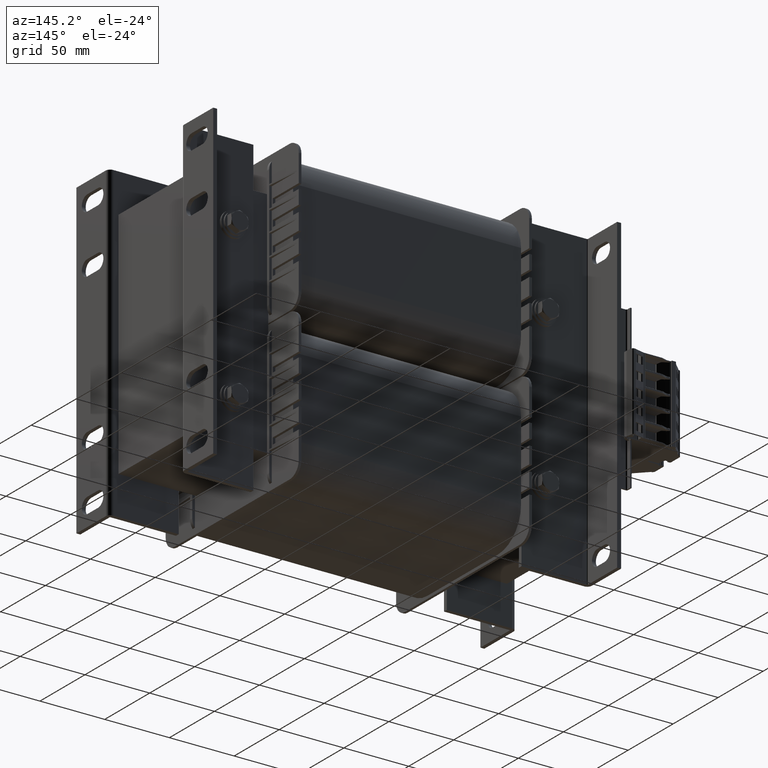
[diagram: clean part render]
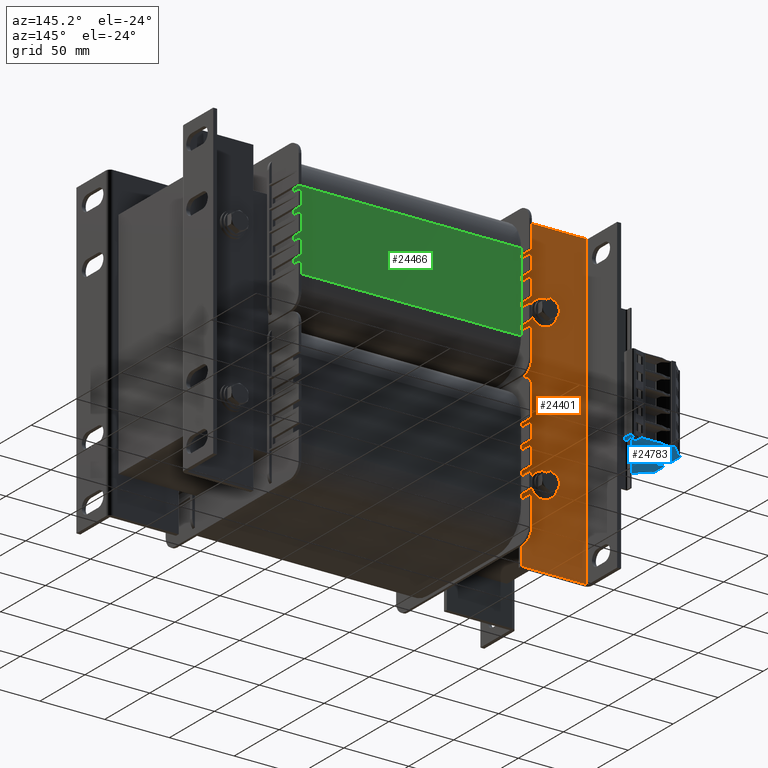
[diagram: same view with three faces highlighted in distinct colors, each labeled with its STEP entity id]
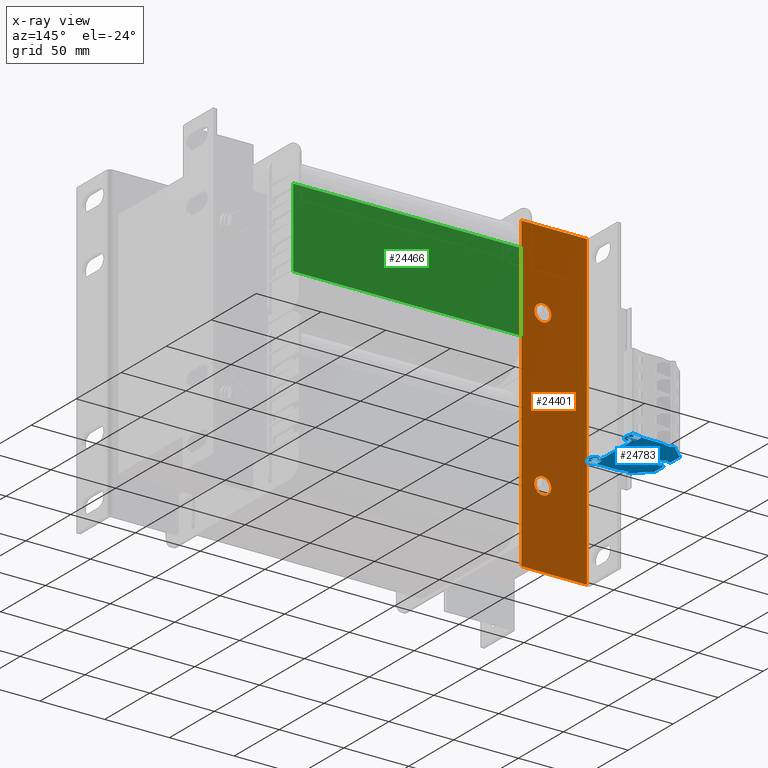
[diagram: x-ray of the same camera — body ghosted, the three highlighted faces saturated]
A machine part, auxiliary view with three faces highlighted in distinct colors.
The next image is the same camera in x-ray (body ghosted, the three faces saturated) — at least one of them is partly hidden behind the body in this view.
Their STEP definitions:

[orange] entity #24401 — the highlighted planar face has unit normal (0, 1, 0).
#1045=FACE_BOUND('',#3832,.T.);
#1046=FACE_BOUND('',#3833,.T.);
#1151=CIRCLE('',#26107,6.50000000000001);
#1152=CIRCLE('',#26109,6.5);
#2447=FACE_OUTER_BOUND('',#3831,.T.);
#3831=EDGE_LOOP('',(#16630,#16631,#16632,#16633));
#3832=EDGE_LOOP('',(#16634));
#3833=EDGE_LOOP('',(#16635));
#5295=LINE('',#35727,#7892);
#5298=LINE('',#35733,#7895);
#5303=LINE('',#35752,#7900);
#5305=LINE('',#35755,#7902);
#7892=VECTOR('',#28599,10.);
#7895=VECTOR('',#28604,10.);
#7900=VECTOR('',#28625,10.);
#7902=VECTOR('',#28629,10.);
#10473=VERTEX_POINT('',#35712);
#10474=VERTEX_POINT('',#35716);
#10477=VERTEX_POINT('',#35731);
#10481=VERTEX_POINT('',#35743);
#10482=VERTEX_POINT('',#35747);
#10483=VERTEX_POINT('',#35751);
#12840=EDGE_CURVE('',#10473,#10474,#5295,.T.);
#12843=EDGE_CURVE('',#10477,#10474,#5298,.T.);
#12849=EDGE_CURVE('',#10481,#10481,#1151,.T.);
#12851=EDGE_CURVE('',#10482,#10482,#1152,.T.);
#12852=EDGE_CURVE('',#10483,#10477,#5303,.T.);
#12854=EDGE_CURVE('',#10473,#10483,#5305,.T.);
#16630=ORIENTED_EDGE('',*,*,#12840,.T.);
#16631=ORIENTED_EDGE('',*,*,#12843,.F.);
#16632=ORIENTED_EDGE('',*,*,#12852,.F.);
#16633=ORIENTED_EDGE('',*,*,#12854,.F.);
#16634=ORIENTED_EDGE('',*,*,#12849,.T.);
#16635=ORIENTED_EDGE('',*,*,#12851,.T.);
#23539=PLANE('',#26112);
#24401=ADVANCED_FACE('',(#2447,#1045,#1046),#23539,.T.);
#26107=AXIS2_PLACEMENT_3D('',#35745,#28616,#28617);
#26109=AXIS2_PLACEMENT_3D('',#35749,#28621,#28622);
#26112=AXIS2_PLACEMENT_3D('',#35756,#28630,#28631);
#28599=DIRECTION('',(2.96059473233375E-16,0.,1.));
#28604=DIRECTION('',(-1.,0.,0.));
#28616=DIRECTION('center_axis',(0.,-1.,0.));
#28617=DIRECTION('ref_axis',(1.,0.,0.));
#28621=DIRECTION('center_axis',(0.,-1.,0.));
#28622=DIRECTION('ref_axis',(1.,0.,0.));
#28625=DIRECTION('',(2.96059473233375E-16,0.,1.));
#28629=DIRECTION('',(1.,0.,0.));
#28630=DIRECTION('center_axis',(0.,1.,0.));
#28631=DIRECTION('ref_axis',(0.,0.,1.));
#35712=CARTESIAN_POINT('',(-50.5,3.,0.));
#35716=CARTESIAN_POINT('',(-50.4999999999999,3.,240.));
#35727=CARTESIAN_POINT('',(-50.5,3.,180.));
#35731=CARTESIAN_POINT('',(7.105427357601E-14,3.,240.));
#35733=CARTESIAN_POINT('',(-53.9999999999999,3.,240.));
#35743=CARTESIAN_POINT('',(-23.,3.,180.));
#35745=CARTESIAN_POINT('Origin',(-16.5,3.,180.));
#35747=CARTESIAN_POINT('',(-23.,3.,60.));
#35749=CARTESIAN_POINT('Origin',(-16.5,3.,60.));
#35751=CARTESIAN_POINT('',(0.,3.,0.));
#35752=CARTESIAN_POINT('',(7.105427357601E-14,3.,240.));
#35755=CARTESIAN_POINT('',(0.,3.,0.));
#35756=CARTESIAN_POINT('Origin',(-27.,3.,120.));

[blue] entity #24783 — the highlighted planar face has unit normal (0, 0, -1).
#1073=FACE_BOUND('',#4242,.T.);
#1074=FACE_BOUND('',#4243,.T.);
#1323=CIRCLE('',#26673,0.5);
#1324=CIRCLE('',#26674,0.8);
#1325=CIRCLE('',#26675,40.);
#1326=CIRCLE('',#26676,0.3);
#1327=CIRCLE('',#26677,0.3);
#1328=CIRCLE('',#26678,0.3);
#1329=CIRCLE('',#26679,0.3);
#1330=CIRCLE('',#26680,0.3);
#1331=CIRCLE('',#26681,0.3);
#1332=CIRCLE('',#26682,0.3);
#1333=CIRCLE('',#26683,0.3);
#1334=CIRCLE('',#26684,0.3);
#1335=CIRCLE('',#26685,0.3);
#1336=CIRCLE('',#26686,40.);
#1337=CIRCLE('',#26687,0.8);
#1338=CIRCLE('',#26688,0.5);
#1339=CIRCLE('',#26689,0.5);
#1340=CIRCLE('',#26690,2.);
#1341=CIRCLE('',#26691,4.);
#1342=CIRCLE('',#26692,1.);
#1343=CIRCLE('',#26693,5.);
#1344=CIRCLE('',#26694,0.3);
#1345=CIRCLE('',#26695,0.3);
#1346=CIRCLE('',#26696,0.3);
#1347=CIRCLE('',#26697,0.3);
#1348=CIRCLE('',#26698,0.3);
#1349=CIRCLE('',#26699,0.3);
#1350=CIRCLE('',#26700,1.);
#1351=CIRCLE('',#26701,0.3);
#1352=CIRCLE('',#26702,0.3);
#1353=CIRCLE('',#26703,0.3);
#1354=CIRCLE('',#26704,0.3);
#1355=CIRCLE('',#26705,0.3);
#1356=CIRCLE('',#26706,0.3);
#1357=CIRCLE('',#26707,1.);
#1358=CIRCLE('',#26708,0.3);
#1359=CIRCLE('',#26709,0.3);
#1360=CIRCLE('',#26710,0.3);
#1361=CIRCLE('',#26711,0.3);
#1362=CIRCLE('',#26712,0.3);
#1363=CIRCLE('',#26713,0.3);
#1364=CIRCLE('',#26714,5.);
#1365=CIRCLE('',#26715,1.);
#1366=CIRCLE('',#26716,4.);
#1367=CIRCLE('',#26717,2.);
#1368=CIRCLE('',#26718,0.5);
#1369=CIRCLE('',#26719,0.3);
#1370=CIRCLE('',#26720,1.75);
#1371=CIRCLE('',#26721,0.3);
#1372=CIRCLE('',#26722,0.3);
#1373=CIRCLE('',#26723,40.);
#1374=CIRCLE('',#26724,0.3);
#1375=CIRCLE('',#26725,1.);
#1376=CIRCLE('',#26726,0.3);
#1377=CIRCLE('',#26727,0.3);
#1378=CIRCLE('',#26728,0.3);
#1379=CIRCLE('',#26729,0.3);
#1380=CIRCLE('',#26730,0.300000000000001);
#1381=CIRCLE('',#26731,1.75);
#1382=CIRCLE('',#26732,0.3);
#1383=CIRCLE('',#26733,0.3);
#1384=CIRCLE('',#26734,0.299999999999993);
#1385=CIRCLE('',#26735,0.299999999999995);
#1386=CIRCLE('',#26736,0.3);
#1387=CIRCLE('',#26737,1.);
#1388=CIRCLE('',#26738,0.3);
#1389=CIRCLE('',#26739,40.);
#1390=CIRCLE('',#26740,0.3);
#2829=FACE_OUTER_BOUND('',#4241,.T.);
#4241=EDGE_LOOP('',(#18554,#18555,#18556,#18557,#18558,#18559,#18560,#18561,
#18562,#18563,#18564,#18565,#18566,#18567,#18568,#18569,#18570,#18571,#18572,
#18573,#18574,#18575,#18576,#18577,#18578,#18579,#18580,#18581,#18582,#18583,
#18584,#18585,#18586,#18587,#18588,#18589,#18590,#18591,#18592,#18593,#18594,
#18595,#18596,#18597,#18598,#18599,#18600,#18601,#18602,#18603,#18604,#18605,
#18606,#18607,#18608,#18609,#18610,#18611,#18612,#18613,#18614,#18615,#18616,
#18617,#18618,#18619,#18620,#18621,#18622,#18623,#18624,#18625,#18626,#18627,
#18628,#18629,#18630,#18631,#18632,#18633,#18634,#18635,#18636,#18637,#18638,
#18639,#18640,#18641,#18642,#18643,#18644,#18645,#18646,#18647,#18648,#18649,
#18650,#18651,#18652,#18653,#18654,#18655,#18656,#18657,#18658,#18659,#18660,
#18661));
#4242=EDGE_LOOP('',(#18662,#18663,#18664,#18665,#18666,#18667,#18668,#18669,
#18670,#18671,#18672,#18673,#18674,#18675,#18676,#18677));
#4243=EDGE_LOOP('',(#18678,#18679,#18680,#18681,#18682,#18683,#18684,#18685,
#18686,#18687,#18688,#18689,#18690,#18691,#18692,#18693));
#6073=LINE('',#37803,#8670);
#6074=LINE('',#37807,#8671);
#6075=LINE('',#37815,#8672);
#6076=LINE('',#37819,#8673);
#6077=LINE('',#37823,#8674);
#6078=LINE('',#37827,#8675);
#6079=LINE('',#37831,#8676);
#6080=LINE('',#37833,#8677);
#6081=LINE('',#37835,#8678);
#6082=LINE('',#37837,#8679);
#6083=LINE('',#37839,#8680);
#6084=LINE('',#37841,#8681);
#6085=LINE('',#37843,#8682);
#6086=LINE('',#37847,#8683);
#6087=LINE('',#37851,#8684);
#6088=LINE('',#37855,#8685);
#6089=LINE('',#37859,#8686);
#6090=LINE('',#37867,#8687);
#6091=LINE('',#37871,#8688);
#6092=LINE('',#37877,#8689);
#6093=LINE('',#37881,#8690);
#6094=LINE('',#37883,#8691);
#6095=LINE('',#37887,#8692);
#6096=LINE('',#37889,#8693);
#6097=LINE('',#37891,#8694);
#6098=LINE('',#37895,#8695);
#6099=LINE('',#37897,#8696);
#6100=LINE('',#37901,#8697);
#6101=LINE('',#37905,#8698);
#6102=LINE('',#37909,#8699);
#6103=LINE('',#37913,#8700);
#6104=LINE('',#37915,#8701);
#6105=LINE('',#37917,#8702);
#6106=LINE('',#37921,#8703);
#6107=LINE('',#37925,#8704);
#6108=LINE('',#37929,#8705);
#6109=LINE('',#37933,#8706);
#6110=LINE('',#37937,#8707);
#6111=LINE('',#37941,#8708);
#6112=LINE('',#37943,#8709);
#6113=LINE('',#37945,#8710);
#6114=LINE('',#37947,#8711);
#6115=LINE('',#37949,#8712);
#6116=LINE('',#37953,#8713);
#6117=LINE('',#37957,#8714);
#6118=LINE('',#37961,#8715);
#6119=LINE('',#37965,#8716);
#6120=LINE('',#37969,#8717);
#6121=LINE('',#37973,#8718);
#6122=LINE('',#37975,#8719);
#6123=LINE('',#37977,#8720);
#6124=LINE('',#37981,#8721);
#6125=LINE('',#37985,#8722);
#6126=LINE('',#37989,#8723);
#6127=LINE('',#37993,#8724);
#6128=LINE('',#37995,#8725);
#6129=LINE('',#37999,#8726);
#6130=LINE('',#38001,#8727);
#6131=LINE('',#38003,#8728);
#6132=LINE('',#38007,#8729);
#6133=LINE('',#38009,#8730);
#6134=LINE('',#38013,#8731);
#6135=LINE('',#38025,#8732);
#6136=LINE('',#38033,#8733);
#6137=LINE('',#38039,#8734);
#6138=LINE('',#38045,#8735);
#6139=LINE('',#38048,#8736);
#6140=LINE('',#38057,#8737);
#6141=LINE('',#38061,#8738);
#6142=LINE('',#38067,#8739);
#6143=LINE('',#38073,#8740);
#6144=LINE('',#38080,#8741);
#8670=VECTOR('',#30519,0.999999999999799);
#8671=VECTOR('',#30522,1.00000000000044);
#8672=VECTOR('',#30529,1.);
#8673=VECTOR('',#30532,1.);
#8674=VECTOR('',#30535,1.);
#8675=VECTOR('',#30538,1.);
#8676=VECTOR('',#30541,0.99999999999962);
#8677=VECTOR('',#30542,1.);
#8678=VECTOR('',#30543,1.00000000000064);
#8679=VECTOR('',#30544,1.);
#8680=VECTOR('',#30545,1.00000000000064);
#8681=VECTOR('',#30546,1.);
#8682=VECTOR('',#30547,0.99999999999962);
#8683=VECTOR('',#30550,1.);
#8684=VECTOR('',#30553,1.);
#8685=VECTOR('',#30556,1.);
#8686=VECTOR('',#30559,1.);
#8687=VECTOR('',#30566,1.00000000000044);
#8688=VECTOR('',#30569,0.999999999999799);
#8689=VECTOR('',#30574,1.0000000000002);
#8690=VECTOR('',#30577,1.);
#8691=VECTOR('',#30578,0.999999999999807);
#8692=VECTOR('',#30581,1.);
#8693=VECTOR('',#30582,0.999999999999799);
#8694=VECTOR('',#30583,1.);
#8695=VECTOR('',#30586,1.0000000000002);
#8696=VECTOR('',#30587,1.);
#8697=VECTOR('',#30590,1.);
#8698=VECTOR('',#30593,1.);
#8699=VECTOR('',#30596,0.999999999999933);
#8700=VECTOR('',#30599,0.999999999999933);
#8701=VECTOR('',#30600,1.00000000000064);
#8702=VECTOR('',#30601,0.999999999999933);
#8703=VECTOR('',#30604,1.00000000000064);
#8704=VECTOR('',#30607,1.);
#8705=VECTOR('',#30610,1.);
#8706=VECTOR('',#30613,1.);
#8707=VECTOR('',#30616,1.);
#8708=VECTOR('',#30619,1.);
#8709=VECTOR('',#30620,1.);
#8710=VECTOR('',#30621,1.);
#8711=VECTOR('',#30622,1.);
#8712=VECTOR('',#30623,1.);
#8713=VECTOR('',#30626,1.);
#8714=VECTOR('',#30629,1.);
#8715=VECTOR('',#30632,1.);
#8716=VECTOR('',#30635,1.);
#8717=VECTOR('',#30638,1.00000000000064);
#8718=VECTOR('',#30641,0.999999999999933);
#8719=VECTOR('',#30642,1.00000000000064);
#8720=VECTOR('',#30643,0.999999999999933);
#8721=VECTOR('',#30646,1.00000000000064);
#8722=VECTOR('',#30649,1.);
#8723=VECTOR('',#30652,1.);
#8724=VECTOR('',#30655,1.);
#8725=VECTOR('',#30656,1.0000000000002);
#8726=VECTOR('',#30659,1.);
#8727=VECTOR('',#30660,0.999999999999799);
#8728=VECTOR('',#30661,1.);
#8729=VECTOR('',#30664,0.999999999999807);
#8730=VECTOR('',#30665,1.);
#8731=VECTOR('',#30668,1.0000000000002);
#8732=VECTOR('',#30679,1.);
#8733=VECTOR('',#30686,1.);
#8734=VECTOR('',#30691,0.999999999999799);
#8735=VECTOR('',#30696,1.);
#8736=VECTOR('',#30699,0.999999999999807);
#8737=VECTOR('',#30706,0.999999999999807);
#8738=VECTOR('',#30709,1.);
#8739=VECTOR('',#30714,0.999999999999799);
#8740=VECTOR('',#30719,1.);
#8741=VECTOR('',#30726,1.);
#11101=VERTEX_POINT('',#37801);
#11102=VERTEX_POINT('',#37802);
#11103=VERTEX_POINT('',#37804);
#11104=VERTEX_POINT('',#37806);
#11105=VERTEX_POINT('',#37808);
#11106=VERTEX_POINT('',#37810);
#11107=VERTEX_POINT('',#37812);
#11108=VERTEX_POINT('',#37814);
#11109=VERTEX_POINT('',#37816);
#11110=VERTEX_POINT('',#37818);
#11111=VERTEX_POINT('',#37820);
#11112=VERTEX_POINT('',#37822);
#11113=VERTEX_POINT('',#37824);
#11114=VERTEX_POINT('',#37826);
#11115=VERTEX_POINT('',#37828);
#11116=VERTEX_POINT('',#37830);
#11117=VERTEX_POINT('',#37832);
#11118=VERTEX_POINT('',#37834);
#11119=VERTEX_POINT('',#37836);
#11120=VERTEX_POINT('',#37838);
#11121=VERTEX_POINT('',#37840);
#11122=VERTEX_POINT('',#37842);
#11123=VERTEX_POINT('',#37844);
#11124=VERTEX_POINT('',#37846);
#11125=VERTEX_POINT('',#37848);
#11126=VERTEX_POINT('',#37850);
#11127=VERTEX_POINT('',#37852);
#11128=VERTEX_POINT('',#37854);
#11129=VERTEX_POINT('',#37856);
#11130=VERTEX_POINT('',#37858);
#11131=VERTEX_POINT('',#37860);
#11132=VERTEX_POINT('',#37862);
#11133=VERTEX_POINT('',#37864);
#11134=VERTEX_POINT('',#37866);
#11135=VERTEX_POINT('',#37868);
#11136=VERTEX_POINT('',#37870);
#11137=VERTEX_POINT('',#37872);
#11138=VERTEX_POINT('',#37874);
#11139=VERTEX_POINT('',#37876);
#11140=VERTEX_POINT('',#37878);
#11141=VERTEX_POINT('',#37880);
#11142=VERTEX_POINT('',#37882);
#11143=VERTEX_POINT('',#37884);
#11144=VERTEX_POINT('',#37886);
#11145=VERTEX_POINT('',#37888);
#11146=VERTEX_POINT('',#37890);
#11147=VERTEX_POINT('',#37892);
#11148=VERTEX_POINT('',#37894);
#11149=VERTEX_POINT('',#37896);
#11150=VERTEX_POINT('',#37898);
#11151=VERTEX_POINT('',#37900);
#11152=VERTEX_POINT('',#37902);
#11153=VERTEX_POINT('',#37904);
#11154=VERTEX_POINT('',#37906);
#11155=VERTEX_POINT('',#37908);
#11156=VERTEX_POINT('',#37910);
#11157=VERTEX_POINT('',#37912);
#11158=VERTEX_POINT('',#37914);
#11159=VERTEX_POINT('',#37916);
#11160=VERTEX_POINT('',#37918);
#11161=VERTEX_POINT('',#37920);
#11162=VERTEX_POINT('',#37922);
#11163=VERTEX_POINT('',#37924);
#11164=VERTEX_POINT('',#37926);
#11165=VERTEX_POINT('',#37928);
#11166=VERTEX_POINT('',#37930);
#11167=VERTEX_POINT('',#37932);
#11168=VERTEX_POINT('',#37934);
#11169=VERTEX_POINT('',#37936);
#11170=VERTEX_POINT('',#37938);
#11171=VERTEX_POINT('',#37940);
#11172=VERTEX_POINT('',#37942);
#11173=VERTEX_POINT('',#37944);
#11174=VERTEX_POINT('',#37946);
#11175=VERTEX_POINT('',#37948);
#11176=VERTEX_POINT('',#37950);
#11177=VERTEX_POINT('',#37952);
#11178=VERTEX_POINT('',#37954);
#11179=VERTEX_POINT('',#37956);
#11180=VERTEX_POINT('',#37958);
#11181=VERTEX_POINT('',#37960);
#11182=VERTEX_POINT('',#37962);
#11183=VERTEX_POINT('',#37964);
#11184=VERTEX_POINT('',#37966);
#11185=VERTEX_POINT('',#37968);
#11186=VERTEX_POINT('',#37970);
#11187=VERTEX_POINT('',#37972);
#11188=VERTEX_POINT('',#37974);
#11189=VERTEX_POINT('',#37976);
#11190=VERTEX_POINT('',#37978);
#11191=VERTEX_POINT('',#37980);
#11192=VERTEX_POINT('',#37982);
#11193=VERTEX_POINT('',#37984);
#11194=VERTEX_POINT('',#37986);
#11195=VERTEX_POINT('',#37988);
#11196=VERTEX_POINT('',#37990);
#11197=VERTEX_POINT('',#37992);
#11198=VERTEX_POINT('',#37994);
#11199=VERTEX_POINT('',#37996);
#11200=VERTEX_POINT('',#37998);
#11201=VERTEX_POINT('',#38000);
#11202=VERTEX_POINT('',#38002);
#11203=VERTEX_POINT('',#38004);
#11204=VERTEX_POINT('',#38006);
#11205=VERTEX_POINT('',#38008);
#11206=VERTEX_POINT('',#38010);
#11207=VERTEX_POINT('',#38012);
#11208=VERTEX_POINT('',#38014);
#11209=VERTEX_POINT('',#38017);
#11210=VERTEX_POINT('',#38018);
#11211=VERTEX_POINT('',#38020);
#11212=VERTEX_POINT('',#38022);
#11213=VERTEX_POINT('',#38024);
#11214=VERTEX_POINT('',#38026);
#11215=VERTEX_POINT('',#38028);
#11216=VERTEX_POINT('',#38030);
#11217=VERTEX_POINT('',#38032);
#11218=VERTEX_POINT('',#38034);
#11219=VERTEX_POINT('',#38036);
#11220=VERTEX_POINT('',#38038);
#11221=VERTEX_POINT('',#38040);
#11222=VERTEX_POINT('',#38042);
#11223=VERTEX_POINT('',#38044);
#11224=VERTEX_POINT('',#38046);
#11225=VERTEX_POINT('',#38049);
#11226=VERTEX_POINT('',#38050);
#11227=VERTEX_POINT('',#38052);
#11228=VERTEX_POINT('',#38054);
#11229=VERTEX_POINT('',#38056);
#11230=VERTEX_POINT('',#38058);
#11231=VERTEX_POINT('',#38060);
#11232=VERTEX_POINT('',#38062);
#11233=VERTEX_POINT('',#38064);
#11234=VERTEX_POINT('',#38066);
#11235=VERTEX_POINT('',#38068);
#11236=VERTEX_POINT('',#38070);
#11237=VERTEX_POINT('',#38072);
#11238=VERTEX_POINT('',#38074);
#11239=VERTEX_POINT('',#38076);
#11240=VERTEX_POINT('',#38078);
#13821=EDGE_CURVE('',#11101,#11102,#6073,.T.);
#13822=EDGE_CURVE('',#11102,#11103,#1323,.T.);
#13823=EDGE_CURVE('',#11104,#11103,#6074,.T.);
#13824=EDGE_CURVE('',#11105,#11104,#1324,.T.);
#13825=EDGE_CURVE('',#11106,#11105,#1325,.T.);
#13826=EDGE_CURVE('',#11106,#11107,#1326,.T.);
#13827=EDGE_CURVE('',#11108,#11107,#6075,.T.);
#13828=EDGE_CURVE('',#11108,#11109,#1327,.T.);
#13829=EDGE_CURVE('',#11110,#11109,#6076,.T.);
#13830=EDGE_CURVE('',#11110,#11111,#1328,.T.);
#13831=EDGE_CURVE('',#11112,#11111,#6077,.T.);
#13832=EDGE_CURVE('',#11112,#11113,#1329,.T.);
#13833=EDGE_CURVE('',#11114,#11113,#6078,.T.);
#13834=EDGE_CURVE('',#11115,#11114,#1330,.T.);
#13835=EDGE_CURVE('',#11116,#11115,#6079,.T.);
#13836=EDGE_CURVE('',#11116,#11117,#6080,.T.);
#13837=EDGE_CURVE('',#11118,#11117,#6081,.T.);
#13838=EDGE_CURVE('',#11118,#11119,#6082,.T.);
#13839=EDGE_CURVE('',#11119,#11120,#6083,.T.);
#13840=EDGE_CURVE('',#11120,#11121,#6084,.T.);
#13841=EDGE_CURVE('',#11121,#11122,#6085,.T.);
#13842=EDGE_CURVE('',#11122,#11123,#1331,.T.);
#13843=EDGE_CURVE('',#11123,#11124,#6086,.T.);
#13844=EDGE_CURVE('',#11125,#11124,#1332,.T.);
#13845=EDGE_CURVE('',#11125,#11126,#6087,.T.);
#13846=EDGE_CURVE('',#11126,#11127,#1333,.T.);
#13847=EDGE_CURVE('',#11127,#11128,#6088,.T.);
#13848=EDGE_CURVE('',#11128,#11129,#1334,.T.);
#13849=EDGE_CURVE('',#11129,#11130,#6089,.T.);
#13850=EDGE_CURVE('',#11130,#11131,#1335,.T.);
#13851=EDGE_CURVE('',#11131,#11132,#1336,.T.);
#13852=EDGE_CURVE('',#11132,#11133,#1337,.T.);
#13853=EDGE_CURVE('',#11133,#11134,#6090,.T.);
#13854=EDGE_CURVE('',#11134,#11135,#1338,.T.);
#13855=EDGE_CURVE('',#11135,#11136,#6091,.T.);
#13856=EDGE_CURVE('',#11136,#11137,#1339,.T.);
#13857=EDGE_CURVE('',#11137,#11138,#1340,.T.);
#13858=EDGE_CURVE('',#11138,#11139,#6092,.T.);
#13859=EDGE_CURVE('',#11140,#11139,#1341,.T.);
#13860=EDGE_CURVE('',#11140,#11141,#6093,.T.);
#13861=EDGE_CURVE('',#11141,#11142,#6094,.T.);
#13862=EDGE_CURVE('',#11142,#11143,#1342,.T.);
#13863=EDGE_CURVE('',#11144,#11143,#6095,.T.);
#13864=EDGE_CURVE('',#11145,#11144,#6096,.T.);
#13865=EDGE_CURVE('',#11145,#11146,#6097,.T.);
#13866=EDGE_CURVE('',#11146,#11147,#1343,.T.);
#13867=EDGE_CURVE('',#11147,#11148,#6098,.T.);
#13868=EDGE_CURVE('',#11148,#11149,#6099,.T.);
#13869=EDGE_CURVE('',#11149,#11150,#1344,.T.);
#13870=EDGE_CURVE('',#11150,#11151,#6100,.T.);
#13871=EDGE_CURVE('',#11151,#11152,#1345,.T.);
#13872=EDGE_CURVE('',#11152,#11153,#6101,.T.);
#13873=EDGE_CURVE('',#11153,#11154,#1346,.T.);
#13874=EDGE_CURVE('',#11155,#11154,#6102,.T.);
#13875=EDGE_CURVE('',#11155,#11156,#1347,.T.);
#13876=EDGE_CURVE('',#11157,#11156,#6103,.T.);
#13877=EDGE_CURVE('',#11158,#11157,#6104,.T.);
#13878=EDGE_CURVE('',#11159,#11158,#6105,.T.);
#13879=EDGE_CURVE('',#11159,#11160,#1348,.T.);
#13880=EDGE_CURVE('',#11160,#11161,#6106,.T.);
#13881=EDGE_CURVE('',#11161,#11162,#1349,.T.);
#13882=EDGE_CURVE('',#11162,#11163,#6107,.T.);
#13883=EDGE_CURVE('',#11163,#11164,#1350,.T.);
#13884=EDGE_CURVE('',#11164,#11165,#6108,.T.);
#13885=EDGE_CURVE('',#11165,#11166,#1351,.T.);
#13886=EDGE_CURVE('',#11166,#11167,#6109,.T.);
#13887=EDGE_CURVE('',#11167,#11168,#1352,.T.);
#13888=EDGE_CURVE('',#11168,#11169,#6110,.T.);
#13889=EDGE_CURVE('',#11169,#11170,#1353,.T.);
#13890=EDGE_CURVE('',#11170,#11171,#6111,.T.);
#13891=EDGE_CURVE('',#11172,#11171,#6112,.T.);
#13892=EDGE_CURVE('',#11173,#11172,#6113,.T.);
#13893=EDGE_CURVE('',#11174,#11173,#6114,.T.);
#13894=EDGE_CURVE('',#11174,#11175,#6115,.T.);
#13895=EDGE_CURVE('',#11175,#11176,#1354,.T.);
#13896=EDGE_CURVE('',#11176,#11177,#6116,.T.);
#13897=EDGE_CURVE('',#11177,#11178,#1355,.T.);
#13898=EDGE_CURVE('',#11178,#11179,#6117,.T.);
#13899=EDGE_CURVE('',#11179,#11180,#1356,.T.);
#13900=EDGE_CURVE('',#11180,#11181,#6118,.T.);
#13901=EDGE_CURVE('',#11181,#11182,#1357,.T.);
#13902=EDGE_CURVE('',#11183,#11182,#6119,.T.);
#13903=EDGE_CURVE('',#11183,#11184,#1358,.T.);
#13904=EDGE_CURVE('',#11184,#11185,#6120,.T.);
#13905=EDGE_CURVE('',#11185,#11186,#1359,.T.);
#13906=EDGE_CURVE('',#11186,#11187,#6121,.T.);
#13907=EDGE_CURVE('',#11187,#11188,#6122,.T.);
#13908=EDGE_CURVE('',#11188,#11189,#6123,.T.);
#13909=EDGE_CURVE('',#11189,#11190,#1360,.T.);
#13910=EDGE_CURVE('',#11191,#11190,#6124,.T.);
#13911=EDGE_CURVE('',#11191,#11192,#1361,.T.);
#13912=EDGE_CURVE('',#11192,#11193,#6125,.T.);
#13913=EDGE_CURVE('',#11193,#11194,#1362,.T.);
#13914=EDGE_CURVE('',#11194,#11195,#6126,.T.);
#13915=EDGE_CURVE('',#11195,#11196,#1363,.T.);
#13916=EDGE_CURVE('',#11196,#11197,#6127,.T.);
#13917=EDGE_CURVE('',#11197,#11198,#6128,.T.);
#13918=EDGE_CURVE('',#11198,#11199,#1364,.T.);
#13919=EDGE_CURVE('',#11199,#11200,#6129,.T.);
#13920=EDGE_CURVE('',#11200,#11201,#6130,.T.);
#13921=EDGE_CURVE('',#11201,#11202,#6131,.T.);
#13922=EDGE_CURVE('',#11202,#11203,#1365,.T.);
#13923=EDGE_CURVE('',#11203,#11204,#6132,.T.);
#13924=EDGE_CURVE('',#11204,#11205,#6133,.T.);
#13925=EDGE_CURVE('',#11205,#11206,#1366,.T.);
#13926=EDGE_CURVE('',#11207,#11206,#6134,.T.);
#13927=EDGE_CURVE('',#11207,#11208,#1367,.T.);
#13928=EDGE_CURVE('',#11208,#11101,#1368,.T.);
#13929=EDGE_CURVE('',#11209,#11210,#1369,.T.);
#13930=EDGE_CURVE('',#11211,#11210,#1370,.T.);
#13931=EDGE_CURVE('',#11211,#11212,#1371,.T.);
#13932=EDGE_CURVE('',#11212,#11213,#6135,.T.);
#13933=EDGE_CURVE('',#11213,#11214,#1372,.T.);
#13934=EDGE_CURVE('',#11214,#11215,#1373,.T.);
#13935=EDGE_CURVE('',#11215,#11216,#1374,.T.);
#13936=EDGE_CURVE('',#11216,#11217,#6136,.T.);
#13937=EDGE_CURVE('',#11217,#11218,#1375,.T.);
#13938=EDGE_CURVE('',#11218,#11219,#1376,.T.);
#13939=EDGE_CURVE('',#11219,#11220,#6137,.T.);
#13940=EDGE_CURVE('',#11220,#11221,#1377,.T.);
#13941=EDGE_CURVE('',#11221,#11222,#1378,.T.);
#13942=EDGE_CURVE('',#11222,#11223,#6138,.T.);
#13943=EDGE_CURVE('',#11223,#11224,#1379,.T.);
#13944=EDGE_CURVE('',#11224,#11209,#6139,.T.);
#13945=EDGE_CURVE('',#11225,#11226,#1380,.T.);
#13946=EDGE_CURVE('',#11226,#11227,#1381,.T.);
#13947=EDGE_CURVE('',#11227,#11228,#1382,.T.);
#13948=EDGE_CURVE('',#11229,#11228,#6140,.T.);
#13949=EDGE_CURVE('',#11229,#11230,#1383,.T.);
#13950=EDGE_CURVE('',#11231,#11230,#6141,.T.);
#13951=EDGE_CURVE('',#11231,#11232,#1384,.T.);
#13952=EDGE_CURVE('',#11232,#11233,#1385,.T.);
#13953=EDGE_CURVE('',#11233,#11234,#6142,.T.);
#13954=EDGE_CURVE('',#11234,#11235,#1386,.T.);
#13955=EDGE_CURVE('',#11235,#11236,#1387,.T.);
#13956=EDGE_CURVE('',#11237,#11236,#6143,.T.);
#13957=EDGE_CURVE('',#11237,#11238,#1388,.T.);
#13958=EDGE_CURVE('',#11239,#11238,#1389,.T.);
#13959=EDGE_CURVE('',#11239,#11240,#1390,.T.);
#13960=EDGE_CURVE('',#11225,#11240,#6144,.T.);
#18554=ORIENTED_EDGE('',*,*,#13821,.T.);
#18555=ORIENTED_EDGE('',*,*,#13822,.T.);
#18556=ORIENTED_EDGE('',*,*,#13823,.F.);
#18557=ORIENTED_EDGE('',*,*,#13824,.F.);
#18558=ORIENTED_EDGE('',*,*,#13825,.F.);
#18559=ORIENTED_EDGE('',*,*,#13826,.T.);
#18560=ORIENTED_EDGE('',*,*,#13827,.F.);
#18561=ORIENTED_EDGE('',*,*,#13828,.T.);
#18562=ORIENTED_EDGE('',*,*,#13829,.F.);
#18563=ORIENTED_EDGE('',*,*,#13830,.T.);
#18564=ORIENTED_EDGE('',*,*,#13831,.F.);
#18565=ORIENTED_EDGE('',*,*,#13832,.T.);
#18566=ORIENTED_EDGE('',*,*,#13833,.F.);
#18567=ORIENTED_EDGE('',*,*,#13834,.F.);
#18568=ORIENTED_EDGE('',*,*,#13835,.F.);
#18569=ORIENTED_EDGE('',*,*,#13836,.T.);
#18570=ORIENTED_EDGE('',*,*,#13837,.F.);
#18571=ORIENTED_EDGE('',*,*,#13838,.T.);
#18572=ORIENTED_EDGE('',*,*,#13839,.T.);
#18573=ORIENTED_EDGE('',*,*,#13840,.T.);
#18574=ORIENTED_EDGE('',*,*,#13841,.T.);
#18575=ORIENTED_EDGE('',*,*,#13842,.T.);
#18576=ORIENTED_EDGE('',*,*,#13843,.T.);
#18577=ORIENTED_EDGE('',*,*,#13844,.F.);
#18578=ORIENTED_EDGE('',*,*,#13845,.T.);
#18579=ORIENTED_EDGE('',*,*,#13846,.T.);
#18580=ORIENTED_EDGE('',*,*,#13847,.T.);
#18581=ORIENTED_EDGE('',*,*,#13848,.T.);
#18582=ORIENTED_EDGE('',*,*,#13849,.T.);
#18583=ORIENTED_EDGE('',*,*,#13850,.T.);
#18584=ORIENTED_EDGE('',*,*,#13851,.T.);
#18585=ORIENTED_EDGE('',*,*,#13852,.T.);
#18586=ORIENTED_EDGE('',*,*,#13853,.T.);
#18587=ORIENTED_EDGE('',*,*,#13854,.T.);
#18588=ORIENTED_EDGE('',*,*,#13855,.T.);
#18589=ORIENTED_EDGE('',*,*,#13856,.T.);
#18590=ORIENTED_EDGE('',*,*,#13857,.T.);
#18591=ORIENTED_EDGE('',*,*,#13858,.T.);
#18592=ORIENTED_EDGE('',*,*,#13859,.F.);
#18593=ORIENTED_EDGE('',*,*,#13860,.T.);
#18594=ORIENTED_EDGE('',*,*,#13861,.T.);
#18595=ORIENTED_EDGE('',*,*,#13862,.T.);
#18596=ORIENTED_EDGE('',*,*,#13863,.F.);
#18597=ORIENTED_EDGE('',*,*,#13864,.F.);
#18598=ORIENTED_EDGE('',*,*,#13865,.T.);
#18599=ORIENTED_EDGE('',*,*,#13866,.T.);
#18600=ORIENTED_EDGE('',*,*,#13867,.T.);
#18601=ORIENTED_EDGE('',*,*,#13868,.T.);
#18602=ORIENTED_EDGE('',*,*,#13869,.T.);
#18603=ORIENTED_EDGE('',*,*,#13870,.T.);
#18604=ORIENTED_EDGE('',*,*,#13871,.T.);
#18605=ORIENTED_EDGE('',*,*,#13872,.T.);
#18606=ORIENTED_EDGE('',*,*,#13873,.T.);
#18607=ORIENTED_EDGE('',*,*,#13874,.F.);
#18608=ORIENTED_EDGE('',*,*,#13875,.T.);
#18609=ORIENTED_EDGE('',*,*,#13876,.F.);
#18610=ORIENTED_EDGE('',*,*,#13877,.F.);
#18611=ORIENTED_EDGE('',*,*,#13878,.F.);
#18612=ORIENTED_EDGE('',*,*,#13879,.T.);
#18613=ORIENTED_EDGE('',*,*,#13880,.T.);
#18614=ORIENTED_EDGE('',*,*,#13881,.T.);
#18615=ORIENTED_EDGE('',*,*,#13882,.T.);
#18616=ORIENTED_EDGE('',*,*,#13883,.T.);
#18617=ORIENTED_EDGE('',*,*,#13884,.T.);
#18618=ORIENTED_EDGE('',*,*,#13885,.T.);
#18619=ORIENTED_EDGE('',*,*,#13886,.T.);
#18620=ORIENTED_EDGE('',*,*,#13887,.T.);
#18621=ORIENTED_EDGE('',*,*,#13888,.T.);
#18622=ORIENTED_EDGE('',*,*,#13889,.T.);
#18623=ORIENTED_EDGE('',*,*,#13890,.T.);
#18624=ORIENTED_EDGE('',*,*,#13891,.F.);
#18625=ORIENTED_EDGE('',*,*,#13892,.F.);
#18626=ORIENTED_EDGE('',*,*,#13893,.F.);
#18627=ORIENTED_EDGE('',*,*,#13894,.T.);
#18628=ORIENTED_EDGE('',*,*,#13895,.T.);
#18629=ORIENTED_EDGE('',*,*,#13896,.T.);
#18630=ORIENTED_EDGE('',*,*,#13897,.T.);
#18631=ORIENTED_EDGE('',*,*,#13898,.T.);
#18632=ORIENTED_EDGE('',*,*,#13899,.T.);
#18633=ORIENTED_EDGE('',*,*,#13900,.T.);
#18634=ORIENTED_EDGE('',*,*,#13901,.T.);
#18635=ORIENTED_EDGE('',*,*,#13902,.F.);
#18636=ORIENTED_EDGE('',*,*,#13903,.T.);
#18637=ORIENTED_EDGE('',*,*,#13904,.T.);
#18638=ORIENTED_EDGE('',*,*,#13905,.T.);
#18639=ORIENTED_EDGE('',*,*,#13906,.T.);
#18640=ORIENTED_EDGE('',*,*,#13907,.T.);
#18641=ORIENTED_EDGE('',*,*,#13908,.T.);
#18642=ORIENTED_EDGE('',*,*,#13909,.T.);
#18643=ORIENTED_EDGE('',*,*,#13910,.F.);
#18644=ORIENTED_EDGE('',*,*,#13911,.T.);
#18645=ORIENTED_EDGE('',*,*,#13912,.T.);
#18646=ORIENTED_EDGE('',*,*,#13913,.T.);
#18647=ORIENTED_EDGE('',*,*,#13914,.T.);
#18648=ORIENTED_EDGE('',*,*,#13915,.T.);
#18649=ORIENTED_EDGE('',*,*,#13916,.T.);
#18650=ORIENTED_EDGE('',*,*,#13917,.T.);
#18651=ORIENTED_EDGE('',*,*,#13918,.T.);
#18652=ORIENTED_EDGE('',*,*,#13919,.T.);
#18653=ORIENTED_EDGE('',*,*,#13920,.T.);
#18654=ORIENTED_EDGE('',*,*,#13921,.T.);
#18655=ORIENTED_EDGE('',*,*,#13922,.T.);
#18656=ORIENTED_EDGE('',*,*,#13923,.T.);
#18657=ORIENTED_EDGE('',*,*,#13924,.T.);
#18658=ORIENTED_EDGE('',*,*,#13925,.T.);
#18659=ORIENTED_EDGE('',*,*,#13926,.F.);
#18660=ORIENTED_EDGE('',*,*,#13927,.T.);
#18661=ORIENTED_EDGE('',*,*,#13928,.T.);
#18662=ORIENTED_EDGE('',*,*,#13929,.T.);
#18663=ORIENTED_EDGE('',*,*,#13930,.F.);
#18664=ORIENTED_EDGE('',*,*,#13931,.T.);
#18665=ORIENTED_EDGE('',*,*,#13932,.T.);
#18666=ORIENTED_EDGE('',*,*,#13933,.T.);
#18667=ORIENTED_EDGE('',*,*,#13934,.T.);
#18668=ORIENTED_EDGE('',*,*,#13935,.T.);
#18669=ORIENTED_EDGE('',*,*,#13936,.T.);
#18670=ORIENTED_EDGE('',*,*,#13937,.T.);
#18671=ORIENTED_EDGE('',*,*,#13938,.T.);
#18672=ORIENTED_EDGE('',*,*,#13939,.T.);
#18673=ORIENTED_EDGE('',*,*,#13940,.T.);
#18674=ORIENTED_EDGE('',*,*,#13941,.T.);
#18675=ORIENTED_EDGE('',*,*,#13942,.T.);
#18676=ORIENTED_EDGE('',*,*,#13943,.T.);
#18677=ORIENTED_EDGE('',*,*,#13944,.T.);
#18678=ORIENTED_EDGE('',*,*,#13945,.T.);
#18679=ORIENTED_EDGE('',*,*,#13946,.T.);
#18680=ORIENTED_EDGE('',*,*,#13947,.T.);
#18681=ORIENTED_EDGE('',*,*,#13948,.F.);
#18682=ORIENTED_EDGE('',*,*,#13949,.T.);
#18683=ORIENTED_EDGE('',*,*,#13950,.F.);
#18684=ORIENTED_EDGE('',*,*,#13951,.T.);
#18685=ORIENTED_EDGE('',*,*,#13952,.T.);
#18686=ORIENTED_EDGE('',*,*,#13953,.T.);
#18687=ORIENTED_EDGE('',*,*,#13954,.T.);
#18688=ORIENTED_EDGE('',*,*,#13955,.T.);
#18689=ORIENTED_EDGE('',*,*,#13956,.F.);
#18690=ORIENTED_EDGE('',*,*,#13957,.T.);
#18691=ORIENTED_EDGE('',*,*,#13958,.F.);
#18692=ORIENTED_EDGE('',*,*,#13959,.T.);
#18693=ORIENTED_EDGE('',*,*,#13960,.F.);
#23829=PLANE('',#26672);
#24783=ADVANCED_FACE('',(#2829,#1073,#1074),#23829,.T.);
#26672=AXIS2_PLACEMENT_3D('',#37800,#30517,#30518);
#26673=AXIS2_PLACEMENT_3D('',#37805,#30520,#30521);
#26674=AXIS2_PLACEMENT_3D('',#37809,#30523,#30524);
#26675=AXIS2_PLACEMENT_3D('',#37811,#30525,#30526);
#26676=AXIS2_PLACEMENT_3D('',#37813,#30527,#30528);
#26677=AXIS2_PLACEMENT_3D('',#37817,#30530,#30531);
#26678=AXIS2_PLACEMENT_3D('',#37821,#30533,#30534);
#26679=AXIS2_PLACEMENT_3D('',#37825,#30536,#30537);
#26680=AXIS2_PLACEMENT_3D('',#37829,#30539,#30540);
#26681=AXIS2_PLACEMENT_3D('',#37845,#30548,#30549);
#26682=AXIS2_PLACEMENT_3D('',#37849,#30551,#30552);
#26683=AXIS2_PLACEMENT_3D('',#37853,#30554,#30555);
#26684=AXIS2_PLACEMENT_3D('',#37857,#30557,#30558);
#26685=AXIS2_PLACEMENT_3D('',#37861,#30560,#30561);
#26686=AXIS2_PLACEMENT_3D('',#37863,#30562,#30563);
#26687=AXIS2_PLACEMENT_3D('',#37865,#30564,#30565);
#26688=AXIS2_PLACEMENT_3D('',#37869,#30567,#30568);
#26689=AXIS2_PLACEMENT_3D('',#37873,#30570,#30571);
#26690=AXIS2_PLACEMENT_3D('',#37875,#30572,#30573);
#26691=AXIS2_PLACEMENT_3D('',#37879,#30575,#30576);
#26692=AXIS2_PLACEMENT_3D('',#37885,#30579,#30580);
#26693=AXIS2_PLACEMENT_3D('',#37893,#30584,#30585);
#26694=AXIS2_PLACEMENT_3D('',#37899,#30588,#30589);
#26695=AXIS2_PLACEMENT_3D('',#37903,#30591,#30592);
#26696=AXIS2_PLACEMENT_3D('',#37907,#30594,#30595);
#26697=AXIS2_PLACEMENT_3D('',#37911,#30597,#30598);
#26698=AXIS2_PLACEMENT_3D('',#37919,#30602,#30603);
#26699=AXIS2_PLACEMENT_3D('',#37923,#30605,#30606);
#26700=AXIS2_PLACEMENT_3D('',#37927,#30608,#30609);
#26701=AXIS2_PLACEMENT_3D('',#37931,#30611,#30612);
#26702=AXIS2_PLACEMENT_3D('',#37935,#30614,#30615);
#26703=AXIS2_PLACEMENT_3D('',#37939,#30617,#30618);
#26704=AXIS2_PLACEMENT_3D('',#37951,#30624,#30625);
#26705=AXIS2_PLACEMENT_3D('',#37955,#30627,#30628);
#26706=AXIS2_PLACEMENT_3D('',#37959,#30630,#30631);
#26707=AXIS2_PLACEMENT_3D('',#37963,#30633,#30634);
#26708=AXIS2_PLACEMENT_3D('',#37967,#30636,#30637);
#26709=AXIS2_PLACEMENT_3D('',#37971,#30639,#30640);
#26710=AXIS2_PLACEMENT_3D('',#37979,#30644,#30645);
#26711=AXIS2_PLACEMENT_3D('',#37983,#30647,#30648);
#26712=AXIS2_PLACEMENT_3D('',#37987,#30650,#30651);
#26713=AXIS2_PLACEMENT_3D('',#37991,#30653,#30654);
#26714=AXIS2_PLACEMENT_3D('',#37997,#30657,#30658);
#26715=AXIS2_PLACEMENT_3D('',#38005,#30662,#30663);
#26716=AXIS2_PLACEMENT_3D('',#38011,#30666,#30667);
#26717=AXIS2_PLACEMENT_3D('',#38015,#30669,#30670);
#26718=AXIS2_PLACEMENT_3D('',#38016,#30671,#30672);
#26719=AXIS2_PLACEMENT_3D('',#38019,#30673,#30674);
#26720=AXIS2_PLACEMENT_3D('',#38021,#30675,#30676);
#26721=AXIS2_PLACEMENT_3D('',#38023,#30677,#30678);
#26722=AXIS2_PLACEMENT_3D('',#38027,#30680,#30681);
#26723=AXIS2_PLACEMENT_3D('',#38029,#30682,#30683);
#26724=AXIS2_PLACEMENT_3D('',#38031,#30684,#30685);
#26725=AXIS2_PLACEMENT_3D('',#38035,#30687,#30688);
#26726=AXIS2_PLACEMENT_3D('',#38037,#30689,#30690);
#26727=AXIS2_PLACEMENT_3D('',#38041,#30692,#30693);
#26728=AXIS2_PLACEMENT_3D('',#38043,#30694,#30695);
#26729=AXIS2_PLACEMENT_3D('',#38047,#30697,#30698);
#26730=AXIS2_PLACEMENT_3D('',#38051,#30700,#30701);
#26731=AXIS2_PLACEMENT_3D('',#38053,#30702,#30703);
#26732=AXIS2_PLACEMENT_3D('',#38055,#30704,#30705);
#26733=AXIS2_PLACEMENT_3D('',#38059,#30707,#30708);
#26734=AXIS2_PLACEMENT_3D('',#38063,#30710,#30711);
#26735=AXIS2_PLACEMENT_3D('',#38065,#30712,#30713);
#26736=AXIS2_PLACEMENT_3D('',#38069,#30715,#30716);
#26737=AXIS2_PLACEMENT_3D('',#38071,#30717,#30718);
#26738=AXIS2_PLACEMENT_3D('',#38075,#30720,#30721);
#26739=AXIS2_PLACEMENT_3D('',#38077,#30722,#30723);
#26740=AXIS2_PLACEMENT_3D('',#38079,#30724,#30725);
#30517=DIRECTION('center_axis',(0.,0.,-1.));
#30518=DIRECTION('ref_axis',(-1.,0.,0.));
#30519=DIRECTION('',(0.965925826289194,0.258819045102052,0.));
#30520=DIRECTION('center_axis',(0.,0.,-1.));
#30521=DIRECTION('ref_axis',(-0.258819045102052,0.965925826289194,0.));
#30522=DIRECTION('',(-0.422618261740812,0.906307787036597,0.));
#30523=DIRECTION('center_axis',(0.,0.,-1.));
#30524=DIRECTION('ref_axis',(0.998265176407129,-0.0588781587079876,0.));
#30525=DIRECTION('center_axis',(0.,0.,-1.));
#30526=DIRECTION('ref_axis',(0.995408533748115,0.095717558166871,0.));
#30527=DIRECTION('center_axis',(0.,0.,1.));
#30528=DIRECTION('ref_axis',(0.995412680689737,0.0956744225071247,0.));
#30529=DIRECTION('',(1.,0.,0.));
#30530=DIRECTION('center_axis',(0.,0.,1.));
#30531=DIRECTION('ref_axis',(0.,1.,0.));
#30532=DIRECTION('',(0.,1.,0.));
#30533=DIRECTION('center_axis',(0.,0.,-1.));
#30534=DIRECTION('ref_axis',(1.,0.,0.));
#30535=DIRECTION('',(1.,0.,0.));
#30536=DIRECTION('center_axis',(0.,0.,-1.));
#30537=DIRECTION('ref_axis',(0.,-1.,0.));
#30538=DIRECTION('',(0.,-1.,0.));
#30539=DIRECTION('center_axis',(0.,0.,-1.));
#30540=DIRECTION('ref_axis',(-0.50000000000019,0.866025403784329,0.));
#30541=DIRECTION('',(0.866025403784329,0.50000000000019,0.));
#30542=DIRECTION('',(-1.,0.,0.));
#30543=DIRECTION('',(0.707106781186548,-0.707106781186548,0.));
#30544=DIRECTION('',(-1.,0.,0.));
#30545=DIRECTION('',(-0.707106781186548,-0.707106781186548,0.));
#30546=DIRECTION('',(-1.,0.,0.));
#30547=DIRECTION('',(-0.866025403784329,0.50000000000019,0.));
#30548=DIRECTION('center_axis',(0.,0.,1.));
#30549=DIRECTION('ref_axis',(0.50000000000019,0.866025403784329,0.));
#30550=DIRECTION('',(0.,-1.,0.));
#30551=DIRECTION('center_axis',(0.,0.,1.));
#30552=DIRECTION('ref_axis',(0.,-1.,0.));
#30553=DIRECTION('',(-1.,0.,0.));
#30554=DIRECTION('center_axis',(0.,0.,-1.));
#30555=DIRECTION('ref_axis',(0.,-1.,0.));
#30556=DIRECTION('',(0.,1.,0.));
#30557=DIRECTION('center_axis',(0.,0.,1.));
#30558=DIRECTION('ref_axis',(1.,0.,0.));
#30559=DIRECTION('',(-1.,0.,0.));
#30560=DIRECTION('center_axis',(0.,0.,1.));
#30561=DIRECTION('ref_axis',(0.,1.,0.));
#30562=DIRECTION('center_axis',(0.,0.,1.));
#30563=DIRECTION('ref_axis',(-0.995408502403662,0.0957178841309175,0.));
#30564=DIRECTION('center_axis',(0.,0.,1.));
#30565=DIRECTION('ref_axis',(-0.998265183470862,-0.0588780389439519,0.));
#30566=DIRECTION('',(0.422618261740812,0.906307787036597,0.));
#30567=DIRECTION('center_axis',(0.,0.,-1.));
#30568=DIRECTION('ref_axis',(-0.906307787036597,0.422618261740812,0.));
#30569=DIRECTION('',(0.965925826289194,-0.258819045102052,0.));
#30570=DIRECTION('center_axis',(0.,0.,-1.));
#30571=DIRECTION('ref_axis',(0.258819045102052,0.965925826289194,0.));
#30572=DIRECTION('center_axis',(0.,0.,-1.));
#30573=DIRECTION('ref_axis',(0.965046094393564,-0.262080208515882,0.));
#30574=DIRECTION('',(-0.342020143325932,-0.939692620785813,0.));
#30575=DIRECTION('center_axis',(0.,0.,1.));
#30576=DIRECTION('ref_axis',(0.,-1.,0.));
#30577=DIRECTION('',(-1.,0.,0.));
#30578=DIRECTION('',(-0.98480775301219,0.173648177667033,0.));
#30579=DIRECTION('center_axis',(0.,0.,-1.));
#30580=DIRECTION('ref_axis',(-0.173648177667033,-0.98480775301219,0.));
#30581=DIRECTION('',(0.,-1.,0.));
#30582=DIRECTION('',(-0.258819045102052,-0.965925826289194,0.));
#30583=DIRECTION('',(0.,1.,0.));
#30584=DIRECTION('center_axis',(0.,0.,-1.));
#30585=DIRECTION('ref_axis',(-1.,0.,0.));
#30586=DIRECTION('',(0.342020143325932,0.939692620785813,0.));
#30587=DIRECTION('',(0.,1.,0.));
#30588=DIRECTION('center_axis',(0.,0.,1.));
#30589=DIRECTION('ref_axis',(1.,0.,0.));
#30590=DIRECTION('',(-1.,0.,0.));
#30591=DIRECTION('center_axis',(0.,0.,-1.));
#30592=DIRECTION('ref_axis',(1.156482317318E-14,-1.,0.));
#30593=DIRECTION('',(0.,1.,0.));
#30594=DIRECTION('center_axis',(0.,0.,-1.));
#30595=DIRECTION('ref_axis',(-1.,0.,0.));
#30596=DIRECTION('',(-0.707106781187048,-0.707106781186048,0.));
#30597=DIRECTION('center_axis',(0.,0.,-1.));
#30598=DIRECTION('ref_axis',(-0.707106781186048,0.707106781187047,0.));
#30599=DIRECTION('',(-0.707106781187048,0.707106781186048,0.));
#30600=DIRECTION('',(-0.707106781186548,-0.707106781186548,0.));
#30601=DIRECTION('',(0.707106781186048,-0.707106781187048,0.));
#30602=DIRECTION('center_axis',(0.,0.,-1.));
#30603=DIRECTION('ref_axis',(-0.707106781186548,-0.707106781186548,0.));
#30604=DIRECTION('',(0.707106781186548,0.707106781186548,0.));
#30605=DIRECTION('center_axis',(0.,0.,-1.));
#30606=DIRECTION('ref_axis',(-0.707106781186048,0.707106781187047,0.));
#30607=DIRECTION('',(1.,0.,0.));
#30608=DIRECTION('center_axis',(0.,0.,-1.));
#30609=DIRECTION('ref_axis',(0.,1.,0.));
#30610=DIRECTION('',(0.,-1.,0.));
#30611=DIRECTION('center_axis',(0.,0.,-1.));
#30612=DIRECTION('ref_axis',(1.,0.,0.));
#30613=DIRECTION('',(-1.,0.,0.));
#30614=DIRECTION('center_axis',(0.,0.,1.));
#30615=DIRECTION('ref_axis',(0.,1.,0.));
#30616=DIRECTION('',(0.,-1.,0.));
#30617=DIRECTION('center_axis',(0.,0.,1.));
#30618=DIRECTION('ref_axis',(-1.,0.,0.));
#30619=DIRECTION('',(1.,0.,0.));
#30620=DIRECTION('',(0.,1.,0.));
#30621=DIRECTION('',(-1.,0.,0.));
#30622=DIRECTION('',(0.,-1.,0.));
#30623=DIRECTION('',(1.,0.,0.));
#30624=DIRECTION('center_axis',(0.,0.,1.));
#30625=DIRECTION('ref_axis',(0.,-1.,0.));
#30626=DIRECTION('',(0.,1.,0.));
#30627=DIRECTION('center_axis',(0.,0.,1.));
#30628=DIRECTION('ref_axis',(1.,0.,0.));
#30629=DIRECTION('',(-1.,0.,0.));
#30630=DIRECTION('center_axis',(0.,0.,-1.));
#30631=DIRECTION('ref_axis',(0.,-1.,0.));
#30632=DIRECTION('',(0.,1.,0.));
#30633=DIRECTION('center_axis',(0.,0.,-1.));
#30634=DIRECTION('ref_axis',(-1.,0.,0.));
#30635=DIRECTION('',(-1.,0.,0.));
#30636=DIRECTION('center_axis',(0.,0.,-1.));
#30637=DIRECTION('ref_axis',(0.,1.,0.));
#30638=DIRECTION('',(0.707106781186548,-0.707106781186548,0.));
#30639=DIRECTION('center_axis',(0.,0.,-1.));
#30640=DIRECTION('ref_axis',(0.707106781186548,0.707106781186548,0.));
#30641=DIRECTION('',(-0.707106781186048,-0.707106781187048,0.));
#30642=DIRECTION('',(0.707106781186548,-0.707106781186548,0.));
#30643=DIRECTION('',(0.707106781187048,0.707106781186048,0.));
#30644=DIRECTION('center_axis',(0.,0.,-1.));
#30645=DIRECTION('ref_axis',(-0.707106781186548,0.707106781186548,0.));
#30646=DIRECTION('',(-0.707106781186548,0.707106781186548,0.));
#30647=DIRECTION('center_axis',(0.,0.,-1.));
#30648=DIRECTION('ref_axis',(0.707106781187047,0.707106781186048,0.));
#30649=DIRECTION('',(0.,-1.,0.));
#30650=DIRECTION('center_axis',(0.,0.,-1.));
#30651=DIRECTION('ref_axis',(1.,0.,0.));
#30652=DIRECTION('',(-1.,0.,0.));
#30653=DIRECTION('center_axis',(0.,0.,1.));
#30654=DIRECTION('ref_axis',(0.,1.,0.));
#30655=DIRECTION('',(0.,-1.,0.));
#30656=DIRECTION('',(0.342020143325932,-0.939692620785813,0.));
#30657=DIRECTION('center_axis',(0.,0.,-1.));
#30658=DIRECTION('ref_axis',(0.939692620785813,0.342020143325932,0.));
#30659=DIRECTION('',(0.,-1.,0.));
#30660=DIRECTION('',(0.258819045102052,-0.965925826289194,0.));
#30661=DIRECTION('',(0.,-1.,0.));
#30662=DIRECTION('center_axis',(0.,0.,-1.));
#30663=DIRECTION('ref_axis',(1.,0.,0.));
#30664=DIRECTION('',(-0.98480775301219,-0.173648177667033,0.));
#30665=DIRECTION('',(-1.,0.,0.));
#30666=DIRECTION('center_axis',(0.,0.,-1.));
#30667=DIRECTION('ref_axis',(0.,-1.,0.));
#30668=DIRECTION('',(0.342020143325932,-0.939692620785813,0.));
#30669=DIRECTION('center_axis',(0.,0.,-1.));
#30670=DIRECTION('ref_axis',(-0.939692620785813,-0.342020143325932,0.));
#30671=DIRECTION('center_axis',(0.,0.,-1.));
#30672=DIRECTION('ref_axis',(-0.965046094393564,-0.262080208515882,0.));
#30673=DIRECTION('center_axis',(0.,0.,1.));
#30674=DIRECTION('ref_axis',(-0.173648177667033,-0.98480775301219,0.));
#30675=DIRECTION('center_axis',(0.,0.,1.));
#30676=DIRECTION('ref_axis',(0.969799773271865,-0.243902439023966,0.));
#30677=DIRECTION('center_axis',(0.,0.,1.));
#30678=DIRECTION('ref_axis',(-0.969799773271865,0.243902439023966,0.));
#30679=DIRECTION('',(1.,0.,0.));
#30680=DIRECTION('center_axis',(0.,0.,1.));
#30681=DIRECTION('ref_axis',(0.,-1.,0.));
#30682=DIRECTION('center_axis',(0.,0.,1.));
#30683=DIRECTION('ref_axis',(0.996539259688807,-0.0831234256926639,0.));
#30684=DIRECTION('center_axis',(0.,0.,1.));
#30685=DIRECTION('ref_axis',(0.995408502403662,0.0957178841309075,0.));
#30686=DIRECTION('',(-1.,0.,0.));
#30687=DIRECTION('center_axis',(0.,0.,-1.));
#30688=DIRECTION('ref_axis',(0.,-1.,0.));
#30689=DIRECTION('center_axis',(0.,0.,1.));
#30690=DIRECTION('ref_axis',(0.328962964309047,0.944342823403135,0.));
#30691=DIRECTION('',(-0.258819045102052,-0.965925826289194,0.));
#30692=DIRECTION('center_axis',(0.,0.,1.));
#30693=DIRECTION('ref_axis',(-0.965925826289194,0.258819045102052,0.));
#30694=DIRECTION('center_axis',(0.,0.,-1.));
#30695=DIRECTION('ref_axis',(0.726802133192911,0.686846896466916,0.));
#30696=DIRECTION('',(0.,-1.,0.));
#30697=DIRECTION('center_axis',(0.,0.,1.));
#30698=DIRECTION('ref_axis',(-1.,0.,0.));
#30699=DIRECTION('',(0.98480775301219,-0.173648177667033,0.));
#30700=DIRECTION('center_axis',(0.,0.,1.));
#30701=DIRECTION('ref_axis',(0.970297474435425,0.241914884007237,0.));
#30702=DIRECTION('center_axis',(0.,0.,-1.));
#30703=DIRECTION('ref_axis',(0.326352827080997,0.945248026845992,0.));
#30704=DIRECTION('center_axis',(0.,0.,1.));
#30705=DIRECTION('ref_axis',(-0.988792128641375,0.149298782101057,0.));
#30706=DIRECTION('',(-0.98480775301219,-0.173648177667033,0.));
#30707=DIRECTION('center_axis',(0.,0.,1.));
#30708=DIRECTION('ref_axis',(0.173648177667033,-0.98480775301219,0.));
#30709=DIRECTION('',(0.,-1.,0.));
#30710=DIRECTION('center_axis',(0.,0.,-1.));
#30711=DIRECTION('ref_axis',(-0.724089077204495,0.689706465297479,0.));
#30712=DIRECTION('center_axis',(0.,0.,1.));
#30713=DIRECTION('ref_axis',(0.965925826290552,0.258819045096985,0.));
#30714=DIRECTION('',(-0.258819045102052,0.965925826289194,0.));
#30715=DIRECTION('center_axis',(0.,0.,1.));
#30716=DIRECTION('ref_axis',(0.965925826289194,0.258819045102052,0.));
#30717=DIRECTION('center_axis',(0.,0.,-1.));
#30718=DIRECTION('ref_axis',(0.32895677060908,-0.944344980963231,0.));
#30719=DIRECTION('',(1.,0.,0.));
#30720=DIRECTION('center_axis',(0.,0.,1.));
#30721=DIRECTION('ref_axis',(0.,1.,0.));
#30722=DIRECTION('center_axis',(0.,0.,-1.));
#30723=DIRECTION('ref_axis',(-0.996539305326864,-0.0831228785512886,0.));
#30724=DIRECTION('center_axis',(0.,0.,1.));
#30725=DIRECTION('ref_axis',(-0.996545342029728,-0.0830504742843274,0.));
#30726=DIRECTION('',(-1.,0.,0.));
#37800=CARTESIAN_POINT('Origin',(0.,17.25,0.));
#37801=CARTESIAN_POINT('',(16.12302133586,-1.63628730903,0.));
#37802=CARTESIAN_POINT('',(16.96834930571,-1.40978236217,0.));
#37803=CARTESIAN_POINT('',(16.12302133586,-1.63628730903,0.));
#37804=CARTESIAN_POINT('',(17.55091272178,-1.68143614444,0.));
#37805=CARTESIAN_POINT('Origin',(17.09775882826,-1.89274527531,0.));
#37806=CARTESIAN_POINT('',(18.60694899202,-3.94611323429,0.));
#37807=CARTESIAN_POINT('',(18.60694899202,-3.94611323429,0.));
#37808=CARTESIAN_POINT('',(20.1306073653736,-3.65512111862429,0.));
#37809=CARTESIAN_POINT('Origin',(19.33199522165,-3.6080186249,0.));
#37810=CARTESIAN_POINT('',(20.0163414722873,2.52870672483627,1.48515604031635E-13));
#37811=CARTESIAN_POINT('Origin',(-19.8,-1.3,0.));
#37812=CARTESIAN_POINT('',(19.71771754543,2.8,0.));
#37813=CARTESIAN_POINT('Origin',(19.71771754543,2.5,0.));
#37814=CARTESIAN_POINT('',(19.5,2.8,0.));
#37815=CARTESIAN_POINT('',(19.5,2.8,0.));
#37816=CARTESIAN_POINT('',(19.2,2.5,0.));
#37817=CARTESIAN_POINT('Origin',(19.5,2.5,0.));
#37818=CARTESIAN_POINT('',(19.2,-0.9,0.));
#37819=CARTESIAN_POINT('',(19.2,-0.9,0.));
#37820=CARTESIAN_POINT('',(18.9,-1.2,0.));
#37821=CARTESIAN_POINT('Origin',(18.9,-0.9,0.));
#37822=CARTESIAN_POINT('',(18.,-1.2,0.));
#37823=CARTESIAN_POINT('',(18.,-1.2,0.));
#37824=CARTESIAN_POINT('',(17.7,-0.9,0.));
#37825=CARTESIAN_POINT('Origin',(18.,-0.9,0.));
#37826=CARTESIAN_POINT('',(17.7,0.5,0.));
#37827=CARTESIAN_POINT('',(17.7,0.5,0.));
#37828=CARTESIAN_POINT('',(17.25,0.75980762114,0.));
#37829=CARTESIAN_POINT('Origin',(17.4,0.5,0.));
#37830=CARTESIAN_POINT('',(16.8,0.5,0.));
#37831=CARTESIAN_POINT('',(16.8,0.5,0.));
#37832=CARTESIAN_POINT('',(15.,0.5,0.));
#37833=CARTESIAN_POINT('',(16.8,0.5,0.));
#37834=CARTESIAN_POINT('',(14.5,1.,0.));
#37835=CARTESIAN_POINT('',(14.5,1.,0.));
#37836=CARTESIAN_POINT('',(-14.5,1.,0.));
#37837=CARTESIAN_POINT('',(14.5,1.,0.));
#37838=CARTESIAN_POINT('',(-15.,0.5,0.));
#37839=CARTESIAN_POINT('',(-14.5,1.,0.));
#37840=CARTESIAN_POINT('',(-16.8,0.5,0.));
#37841=CARTESIAN_POINT('',(-15.,0.5,0.));
#37842=CARTESIAN_POINT('',(-17.25,0.75980762114,0.));
#37843=CARTESIAN_POINT('',(-16.8,0.5,0.));
#37844=CARTESIAN_POINT('',(-17.7,0.5,0.));
#37845=CARTESIAN_POINT('Origin',(-17.4,0.5,0.));
#37846=CARTESIAN_POINT('',(-17.7,-0.9,0.));
#37847=CARTESIAN_POINT('',(-17.7,0.5,0.));
#37848=CARTESIAN_POINT('',(-18.,-1.2,0.));
#37849=CARTESIAN_POINT('Origin',(-18.,-0.9,0.));
#37850=CARTESIAN_POINT('',(-18.9,-1.2,0.));
#37851=CARTESIAN_POINT('',(-18.,-1.2,0.));
#37852=CARTESIAN_POINT('',(-19.2,-0.9,0.));
#37853=CARTESIAN_POINT('Origin',(-18.9,-0.9,0.));
#37854=CARTESIAN_POINT('',(-19.2,2.5,0.));
#37855=CARTESIAN_POINT('',(-19.2,-0.9,0.));
#37856=CARTESIAN_POINT('',(-19.5,2.8,0.));
#37857=CARTESIAN_POINT('Origin',(-19.5,2.5,0.));
#37858=CARTESIAN_POINT('',(-19.71771754543,2.8,0.));
#37859=CARTESIAN_POINT('',(-19.5,2.8,0.));
#37860=CARTESIAN_POINT('',(-20.01634009615,2.52871536524,0.));
#37861=CARTESIAN_POINT('Origin',(-19.71771754543,2.5,0.));
#37862=CARTESIAN_POINT('',(-20.1306073682022,-3.65512105413637,3.70074341541719E-16));
#37863=CARTESIAN_POINT('Origin',(19.8,-1.3,0.));
#37864=CARTESIAN_POINT('',(-18.60694899202,-3.94611323429,0.));
#37865=CARTESIAN_POINT('Origin',(-19.33199522165,-3.6080186249,0.));
#37866=CARTESIAN_POINT('',(-17.55091272178,-1.68143614444,0.));
#37867=CARTESIAN_POINT('',(-18.60694899202,-3.94611323429,0.));
#37868=CARTESIAN_POINT('',(-16.96834930571,-1.40978236217,0.));
#37869=CARTESIAN_POINT('Origin',(-17.09775882826,-1.89274527531,0.));
#37870=CARTESIAN_POINT('',(-16.12302133586,-1.63628730903,0.));
#37871=CARTESIAN_POINT('',(-16.96834930571,-1.40978236217,0.));
#37872=CARTESIAN_POINT('',(-15.76990781121,-2.25029032643,0.));
#37873=CARTESIAN_POINT('Origin',(-16.25243085841,-2.11925022218,0.));
#37874=CARTESIAN_POINT('',(-15.82061475843,-2.41017019605,0.));
#37875=CARTESIAN_POINT('Origin',(-17.7,-1.7261299094,0.));
#37876=CARTESIAN_POINT('',(-16.2420596697,-3.5680805733,0.));
#37877=CARTESIAN_POINT('',(-15.82061475843,-2.41017019605,0.));
#37878=CARTESIAN_POINT('',(-20.00083015284,-6.2,0.));
#37879=CARTESIAN_POINT('Origin',(-20.00083015284,-2.2,0.));
#37880=CARTESIAN_POINT('',(-21.5,-6.2,0.));
#37881=CARTESIAN_POINT('',(-20.00083015284,-6.2,0.));
#37882=CARTESIAN_POINT('',(-26.17364817767,-5.37590972794,0.));
#37883=CARTESIAN_POINT('',(-21.5,-6.2,0.));
#37884=CARTESIAN_POINT('',(-27.,-4.39110197493,0.));
#37885=CARTESIAN_POINT('Origin',(-26.,-4.39110197493,0.));
#37886=CARTESIAN_POINT('',(-27.,-3.16410161514,0.));
#37887=CARTESIAN_POINT('',(-27.,-3.16410161514,0.));
#37888=CARTESIAN_POINT('',(-25.,4.3,0.));
#37889=CARTESIAN_POINT('',(-25.,4.3,0.));
#37890=CARTESIAN_POINT('',(-25.,18.446644451167,0.));
#37891=CARTESIAN_POINT('',(-25.,4.3,0.));
#37892=CARTESIAN_POINT('',(-24.69846310393,20.156745167795,0.));
#37893=CARTESIAN_POINT('Origin',(-20.,18.446644451167,0.));
#37894=CARTESIAN_POINT('',(-23.7,22.9,0.));
#37895=CARTESIAN_POINT('',(-24.69846310393,20.156745167795,0.));
#37896=CARTESIAN_POINT('',(-23.7,26.,0.));
#37897=CARTESIAN_POINT('',(-23.7,22.9,0.));
#37898=CARTESIAN_POINT('',(-24.,26.3,0.));
#37899=CARTESIAN_POINT('Origin',(-24.,26.,0.));
#37900=CARTESIAN_POINT('',(-24.7,26.3,0.));
#37901=CARTESIAN_POINT('',(-24.,26.3,0.));
#37902=CARTESIAN_POINT('',(-25.,26.6,0.));
#37903=CARTESIAN_POINT('Origin',(-24.7,26.6,0.));
#37904=CARTESIAN_POINT('',(-25.,29.17573593129,0.));
#37905=CARTESIAN_POINT('',(-25.,26.6,0.));
#37906=CARTESIAN_POINT('',(-24.91213203436,29.38786796564,0.));
#37907=CARTESIAN_POINT('Origin',(-24.7,29.17573593129,0.));
#37908=CARTESIAN_POINT('',(-24.63154941677,29.66845058323,0.));
#37909=CARTESIAN_POINT('',(-24.63154941677,29.66845058323,0.));
#37910=CARTESIAN_POINT('',(-24.20728534806,29.66845058323,0.));
#37911=CARTESIAN_POINT('Origin',(-24.41941738242,29.45631854887,0.));
#37912=CARTESIAN_POINT('',(-24.06586399182,29.52702922699,0.));
#37913=CARTESIAN_POINT('',(-24.06586399182,29.52702922699,0.));
#37914=CARTESIAN_POINT('',(-15.22702922699,38.36586399182,0.));
#37915=CARTESIAN_POINT('',(-15.22702922699,38.36586399182,0.));
#37916=CARTESIAN_POINT('',(-15.36845058323,38.50728534806,0.));
#37917=CARTESIAN_POINT('',(-15.36845058323,38.50728534806,0.));
#37918=CARTESIAN_POINT('',(-15.36845058323,38.93154941677,0.));
#37919=CARTESIAN_POINT('Origin',(-15.15631854887,38.71941738242,0.));
#37920=CARTESIAN_POINT('',(-14.28786796564,40.01213203436,0.));
#37921=CARTESIAN_POINT('',(-15.36845058323,38.93154941677,0.));
#37922=CARTESIAN_POINT('',(-14.07573593129,40.1,0.));
#37923=CARTESIAN_POINT('Origin',(-14.07573593129,39.8,0.));
#37924=CARTESIAN_POINT('',(-4.3,40.1,0.));
#37925=CARTESIAN_POINT('',(-14.07573593129,40.1,0.));
#37926=CARTESIAN_POINT('',(-3.3,39.1,0.));
#37927=CARTESIAN_POINT('Origin',(-4.3,39.1,0.));
#37928=CARTESIAN_POINT('',(-3.3,37.9,0.));
#37929=CARTESIAN_POINT('',(-3.3,39.1,0.));
#37930=CARTESIAN_POINT('',(-3.6,37.6,0.));
#37931=CARTESIAN_POINT('Origin',(-3.6,37.9,0.));
#37932=CARTESIAN_POINT('',(-4.,37.6,0.));
#37933=CARTESIAN_POINT('',(-3.6,37.6,0.));
#37934=CARTESIAN_POINT('',(-4.3,37.3,0.));
#37935=CARTESIAN_POINT('Origin',(-4.,37.3,0.));
#37936=CARTESIAN_POINT('',(-4.3,35.6,0.));
#37937=CARTESIAN_POINT('',(-4.3,37.3,0.));
#37938=CARTESIAN_POINT('',(-4.,35.3,0.));
#37939=CARTESIAN_POINT('Origin',(-4.,35.6,0.));
#37940=CARTESIAN_POINT('',(-3.3,35.3,0.));
#37941=CARTESIAN_POINT('',(-4.,35.3,0.));
#37942=CARTESIAN_POINT('',(-3.3,27.3,0.));
#37943=CARTESIAN_POINT('',(-3.3,27.3,0.));
#37944=CARTESIAN_POINT('',(3.3,27.3,0.));
#37945=CARTESIAN_POINT('',(3.3,27.3,0.));
#37946=CARTESIAN_POINT('',(3.3,35.3,0.));
#37947=CARTESIAN_POINT('',(3.3,35.3,0.));
#37948=CARTESIAN_POINT('',(4.,35.3,0.));
#37949=CARTESIAN_POINT('',(3.3,35.3,0.));
#37950=CARTESIAN_POINT('',(4.3,35.6,0.));
#37951=CARTESIAN_POINT('Origin',(4.,35.6,0.));
#37952=CARTESIAN_POINT('',(4.3,37.3,0.));
#37953=CARTESIAN_POINT('',(4.3,35.6,0.));
#37954=CARTESIAN_POINT('',(4.,37.6,0.));
#37955=CARTESIAN_POINT('Origin',(4.,37.3,0.));
#37956=CARTESIAN_POINT('',(3.6,37.6,0.));
#37957=CARTESIAN_POINT('',(4.,37.6,0.));
#37958=CARTESIAN_POINT('',(3.3,37.9,0.));
#37959=CARTESIAN_POINT('Origin',(3.6,37.9,0.));
#37960=CARTESIAN_POINT('',(3.3,39.1,0.));
#37961=CARTESIAN_POINT('',(3.3,37.9,0.));
#37962=CARTESIAN_POINT('',(4.3,40.1,0.));
#37963=CARTESIAN_POINT('Origin',(4.3,39.1,0.));
#37964=CARTESIAN_POINT('',(14.07573593129,40.1,0.));
#37965=CARTESIAN_POINT('',(14.07573593129,40.1,0.));
#37966=CARTESIAN_POINT('',(14.28786796564,40.01213203436,0.));
#37967=CARTESIAN_POINT('Origin',(14.07573593129,39.8,0.));
#37968=CARTESIAN_POINT('',(15.36845058323,38.93154941677,0.));
#37969=CARTESIAN_POINT('',(14.28786796564,40.01213203436,0.));
#37970=CARTESIAN_POINT('',(15.36845058323,38.50728534806,0.));
#37971=CARTESIAN_POINT('Origin',(15.15631854887,38.71941738242,0.));
#37972=CARTESIAN_POINT('',(15.22702922699,38.36586399182,0.));
#37973=CARTESIAN_POINT('',(15.36845058323,38.50728534806,0.));
#37974=CARTESIAN_POINT('',(24.06586399182,29.52702922699,0.));
#37975=CARTESIAN_POINT('',(15.22702922699,38.36586399182,0.));
#37976=CARTESIAN_POINT('',(24.20728534806,29.66845058323,0.));
#37977=CARTESIAN_POINT('',(24.06586399182,29.52702922699,0.));
#37978=CARTESIAN_POINT('',(24.63154941677,29.66845058323,0.));
#37979=CARTESIAN_POINT('Origin',(24.41941738242,29.45631854887,0.));
#37980=CARTESIAN_POINT('',(24.91213203436,29.38786796564,0.));
#37981=CARTESIAN_POINT('',(24.91213203436,29.38786796564,0.));
#37982=CARTESIAN_POINT('',(25.,29.17573593129,0.));
#37983=CARTESIAN_POINT('Origin',(24.7,29.17573593129,0.));
#37984=CARTESIAN_POINT('',(25.,26.6,0.));
#37985=CARTESIAN_POINT('',(25.,29.17573593129,0.));
#37986=CARTESIAN_POINT('',(24.7,26.3,0.));
#37987=CARTESIAN_POINT('Origin',(24.7,26.6,0.));
#37988=CARTESIAN_POINT('',(24.,26.3,0.));
#37989=CARTESIAN_POINT('',(24.7,26.3,0.));
#37990=CARTESIAN_POINT('',(23.7,26.,0.));
#37991=CARTESIAN_POINT('Origin',(24.,26.,0.));
#37992=CARTESIAN_POINT('',(23.7,22.9,0.));
#37993=CARTESIAN_POINT('',(23.7,26.,0.));
#37994=CARTESIAN_POINT('',(24.69846310393,20.156745167795,0.));
#37995=CARTESIAN_POINT('',(23.7,22.9,0.));
#37996=CARTESIAN_POINT('',(25.,18.446644451167,0.));
#37997=CARTESIAN_POINT('Origin',(20.,18.446644451167,0.));
#37998=CARTESIAN_POINT('',(25.,4.3,0.));
#37999=CARTESIAN_POINT('',(25.,18.446644451167,0.));
#38000=CARTESIAN_POINT('',(27.,-3.16410161514,0.));
#38001=CARTESIAN_POINT('',(25.,4.3,0.));
#38002=CARTESIAN_POINT('',(27.,-4.39110197493,0.));
#38003=CARTESIAN_POINT('',(27.,-3.16410161514,0.));
#38004=CARTESIAN_POINT('',(26.17364817767,-5.37590972794,0.));
#38005=CARTESIAN_POINT('Origin',(26.,-4.39110197493,0.));
#38006=CARTESIAN_POINT('',(21.5,-6.2,0.));
#38007=CARTESIAN_POINT('',(26.17364817767,-5.37590972794,0.));
#38008=CARTESIAN_POINT('',(20.00083015284,-6.2,0.));
#38009=CARTESIAN_POINT('',(21.5,-6.2,0.));
#38010=CARTESIAN_POINT('',(16.2420596697,-3.5680805733,0.));
#38011=CARTESIAN_POINT('Origin',(20.00083015284,-2.2,0.));
#38012=CARTESIAN_POINT('',(15.82061475843,-2.41017019605,0.));
#38013=CARTESIAN_POINT('',(15.82061475843,-2.41017019605,0.));
#38014=CARTESIAN_POINT('',(15.76990781121,-2.25029032643,0.));
#38015=CARTESIAN_POINT('Origin',(17.7,-1.7261299094,0.));
#38016=CARTESIAN_POINT('Origin',(16.25243085841,-2.11925022218,0.));
#38017=CARTESIAN_POINT('',(-25.37878187563,-4.70372481354,0.));
#38018=CARTESIAN_POINT('',(-25.03009901906,-4.36316797725,0.));
#38019=CARTESIAN_POINT('Origin',(-25.32668742233,-4.40828248763,0.));
#38020=CARTESIAN_POINT('',(-21.60285039677,-4.52682926829,0.));
#38021=CARTESIAN_POINT('Origin',(-23.3,-4.1,0.));
#38022=CARTESIAN_POINT('',(-21.31191046479,-4.9,0.));
#38023=CARTESIAN_POINT('Origin',(-21.31191046479,-4.6,0.));
#38024=CARTESIAN_POINT('',(-21.23739139035,-4.9,0.));
#38025=CARTESIAN_POINT('',(-21.31191046479,-4.9,0.));
#38026=CARTESIAN_POINT('',(-20.93842961245,-4.62493702771,0.));
#38027=CARTESIAN_POINT('Origin',(-21.23739139035,-4.6,0.));
#38028=CARTESIAN_POINT('',(-20.98365990385,2.52871536524,0.));
#38029=CARTESIAN_POINT('Origin',(-60.8,-1.3,0.));
#38030=CARTESIAN_POINT('',(-21.28228245457,2.8,0.));
#38031=CARTESIAN_POINT('Origin',(-21.28228245457,2.5,0.));
#38032=CARTESIAN_POINT('',(-24.,2.8,0.));
#38033=CARTESIAN_POINT('',(-21.28228245457,2.8,0.));
#38034=CARTESIAN_POINT('',(-24.3289572115925,2.85565524689845,7.40148683083438E-16));
#38035=CARTESIAN_POINT('Origin',(-24.,3.8,0.));
#38036=CARTESIAN_POINT('',(-24.71742340779,2.64999788554,0.));
#38037=CARTESIAN_POINT('Origin',(-24.4276456599,2.57235217201,0.));
#38038=CARTESIAN_POINT('',(-26.15369646797,-2.71024614859,0.));
#38039=CARTESIAN_POINT('',(-24.71742340779,2.64999788554,0.));
#38040=CARTESIAN_POINT('',(-26.08195936004,-2.99394593106,0.));
#38041=CARTESIAN_POINT('Origin',(-25.86391872008,-2.78789186212,0.));
#38042=CARTESIAN_POINT('',(-26.,-3.2,0.));
#38043=CARTESIAN_POINT('Origin',(-26.3,-3.2,0.));
#38044=CARTESIAN_POINT('',(-26.,-4.34245740795,0.));
#38045=CARTESIAN_POINT('',(-26.,-3.2,0.));
#38046=CARTESIAN_POINT('',(-25.7520944533,-4.63789973385,0.));
#38047=CARTESIAN_POINT('Origin',(-25.7,-4.34245740795,0.));
#38048=CARTESIAN_POINT('',(-25.7520944533,-4.63789973385,0.));
#38049=CARTESIAN_POINT('',(21.31191046479,-4.9,0.));
#38050=CARTESIAN_POINT('',(21.6030000312237,-4.52742531166097,0.));
#38051=CARTESIAN_POINT('Origin',(21.31191046479,-4.6,-1.0842021724855E-18));
#38052=CARTESIAN_POINT('',(25.0300661148807,-4.36338451525049,0.));
#38053=CARTESIAN_POINT('Origin',(23.3,-4.1,0.));
#38054=CARTESIAN_POINT('',(25.37878187563,-4.70372481354,0.));
#38055=CARTESIAN_POINT('Origin',(25.32668742233,-4.40828248763,0.));
#38056=CARTESIAN_POINT('',(25.7520944533,-4.63789973385,0.));
#38057=CARTESIAN_POINT('',(25.7520944533,-4.63789973385,0.));
#38058=CARTESIAN_POINT('',(26.,-4.34245740795,0.));
#38059=CARTESIAN_POINT('Origin',(25.7,-4.34245740795,0.));
#38060=CARTESIAN_POINT('',(26.,-3.2,0.));
#38061=CARTESIAN_POINT('',(26.,-3.2,0.));
#38062=CARTESIAN_POINT('',(26.082772088009,-2.99308592454827,0.));
#38063=CARTESIAN_POINT('Origin',(26.3,-3.2,1.11022302462516E-15));
#38064=CARTESIAN_POINT('',(26.15369646797,-2.71024614859,0.));
#38065=CARTESIAN_POINT('Origin',(25.86391872008,-2.78789186212,0.));
#38066=CARTESIAN_POINT('',(24.71742340779,2.64999788554,0.));
#38067=CARTESIAN_POINT('',(26.15369646797,-2.71024614859,0.));
#38068=CARTESIAN_POINT('',(24.3289572115894,2.85565524689995,4.71816742833326E-16));
#38069=CARTESIAN_POINT('Origin',(24.4276456599,2.57235217201,0.));
#38070=CARTESIAN_POINT('',(24.,2.8,0.));
#38071=CARTESIAN_POINT('Origin',(24.,3.8,0.));
#38072=CARTESIAN_POINT('',(21.28228245457,2.8,0.));
#38073=CARTESIAN_POINT('',(23.96668068405,2.8,0.));
#38074=CARTESIAN_POINT('',(20.9836576033039,2.52870092042931,4.15236354940724E-13));
#38075=CARTESIAN_POINT('Origin',(21.28228245457,2.5,0.));
#38076=CARTESIAN_POINT('',(20.9384274806313,-4.62492251362442,4.25010618838987E-13));
#38077=CARTESIAN_POINT('Origin',(60.8,-1.3,0.));
#38078=CARTESIAN_POINT('',(21.23739139035,-4.9,0.));
#38079=CARTESIAN_POINT('Origin',(21.23739139035,-4.6,0.));
#38080=CARTESIAN_POINT('',(21.31191046479,-4.9,0.));

[green] entity #24466 — the highlighted planar face has unit normal (0, 1, 0).
#2512=FACE_OUTER_BOUND('',#3906,.T.);
#3906=EDGE_LOOP('',(#16910,#16911,#16912,#16913,#16914,#16915,#16916,#16917,
#16918,#16919,#16920,#16921,#16922,#16923,#16924,#16925,#16926,#16927,#16928,
#16929));
#5350=LINE('',#36024,#7947);
#5352=LINE('',#36030,#7949);
#5356=LINE('',#36039,#7953);
#5360=LINE('',#36048,#7957);
#5384=LINE('',#36102,#7981);
#5388=LINE('',#36111,#7985);
#5392=LINE('',#36120,#7989);
#5396=LINE('',#36129,#7993);
#5419=LINE('',#36175,#8016);
#5420=LINE('',#36179,#8017);
#5421=LINE('',#36181,#8018);
#5422=LINE('',#36182,#8019);
#5423=LINE('',#36183,#8020);
#5424=LINE('',#36184,#8021);
#5425=LINE('',#36185,#8022);
#5426=LINE('',#36186,#8023);
#5427=LINE('',#36187,#8024);
#5428=LINE('',#36188,#8025);
#5429=LINE('',#36189,#8026);
#5430=LINE('',#36190,#8027);
#7947=VECTOR('',#28844,10.);
#7949=VECTOR('',#28848,10.);
#7953=VECTOR('',#28854,10.);
#7957=VECTOR('',#28860,10.);
#7981=VECTOR('',#28896,10.);
#7985=VECTOR('',#28902,10.);
#7989=VECTOR('',#28908,10.);
#7993=VECTOR('',#28914,10.);
#8016=VECTOR('',#28953,10.);
#8017=VECTOR('',#28958,10.);
#8018=VECTOR('',#28959,10.);
#8019=VECTOR('',#28960,10.);
#8020=VECTOR('',#28961,10.);
#8021=VECTOR('',#28962,10.);
#8022=VECTOR('',#28963,10.);
#8023=VECTOR('',#28964,10.);
#8024=VECTOR('',#28965,10.);
#8025=VECTOR('',#28966,10.);
#8026=VECTOR('',#28967,10.);
#8027=VECTOR('',#28968,10.);
#10548=VERTEX_POINT('',#36018);
#10550=VERTEX_POINT('',#36022);
#10551=VERTEX_POINT('',#36026);
#10553=VERTEX_POINT('',#36029);
#10555=VERTEX_POINT('',#36035);
#10557=VERTEX_POINT('',#36038);
#10559=VERTEX_POINT('',#36044);
#10561=VERTEX_POINT('',#36047);
#10584=VERTEX_POINT('',#36099);
#10585=VERTEX_POINT('',#36101);
#10588=VERTEX_POINT('',#36108);
#10589=VERTEX_POINT('',#36110);
#10592=VERTEX_POINT('',#36117);
#10593=VERTEX_POINT('',#36119);
#10596=VERTEX_POINT('',#36126);
#10597=VERTEX_POINT('',#36128);
#10611=VERTEX_POINT('',#36172);
#10612=VERTEX_POINT('',#36174);
#10613=VERTEX_POINT('',#36178);
#10614=VERTEX_POINT('',#36180);
#12955=EDGE_CURVE('',#10550,#10548,#5350,.T.);
#12957=EDGE_CURVE('',#10551,#10553,#5352,.T.);
#12961=EDGE_CURVE('',#10555,#10557,#5356,.T.);
#12965=EDGE_CURVE('',#10559,#10561,#5360,.T.);
#12989=EDGE_CURVE('',#10585,#10584,#5384,.T.);
#12993=EDGE_CURVE('',#10589,#10588,#5388,.T.);
#12997=EDGE_CURVE('',#10593,#10592,#5392,.T.);
#13001=EDGE_CURVE('',#10597,#10596,#5396,.T.);
#13027=EDGE_CURVE('',#10612,#10611,#5419,.T.);
#13029=EDGE_CURVE('',#10613,#10559,#5420,.T.);
#13030=EDGE_CURVE('',#10614,#10613,#5421,.T.);
#13031=EDGE_CURVE('',#10585,#10614,#5422,.T.);
#13032=EDGE_CURVE('',#10589,#10584,#5423,.T.);
#13033=EDGE_CURVE('',#10593,#10588,#5424,.T.);
#13034=EDGE_CURVE('',#10597,#10592,#5425,.T.);
#13035=EDGE_CURVE('',#10612,#10596,#5426,.T.);
#13036=EDGE_CURVE('',#10548,#10611,#5427,.T.);
#13037=EDGE_CURVE('',#10553,#10550,#5428,.T.);
#13038=EDGE_CURVE('',#10557,#10551,#5429,.T.);
#13039=EDGE_CURVE('',#10561,#10555,#5430,.T.);
#16910=ORIENTED_EDGE('',*,*,#13029,.F.);
#16911=ORIENTED_EDGE('',*,*,#13030,.F.);
#16912=ORIENTED_EDGE('',*,*,#13031,.F.);
#16913=ORIENTED_EDGE('',*,*,#12989,.T.);
#16914=ORIENTED_EDGE('',*,*,#13032,.F.);
#16915=ORIENTED_EDGE('',*,*,#12993,.T.);
#16916=ORIENTED_EDGE('',*,*,#13033,.F.);
#16917=ORIENTED_EDGE('',*,*,#12997,.T.);
#16918=ORIENTED_EDGE('',*,*,#13034,.F.);
#16919=ORIENTED_EDGE('',*,*,#13001,.T.);
#16920=ORIENTED_EDGE('',*,*,#13035,.F.);
#16921=ORIENTED_EDGE('',*,*,#13027,.T.);
#16922=ORIENTED_EDGE('',*,*,#13036,.F.);
#16923=ORIENTED_EDGE('',*,*,#12955,.F.);
#16924=ORIENTED_EDGE('',*,*,#13037,.F.);
#16925=ORIENTED_EDGE('',*,*,#12957,.F.);
#16926=ORIENTED_EDGE('',*,*,#13038,.F.);
#16927=ORIENTED_EDGE('',*,*,#12961,.F.);
#16928=ORIENTED_EDGE('',*,*,#13039,.F.);
#16929=ORIENTED_EDGE('',*,*,#12965,.F.);
#23580=PLANE('',#26218);
#24466=ADVANCED_FACE('',(#2512),#23580,.T.);
#26218=AXIS2_PLACEMENT_3D('',#36177,#28956,#28957);
#28844=DIRECTION('',(0.,0.,-1.));
#28848=DIRECTION('',(0.,0.,-1.));
#28854=DIRECTION('',(0.,0.,-1.));
#28860=DIRECTION('',(0.,0.,-1.));
#28896=DIRECTION('',(0.,0.,-1.));
#28902=DIRECTION('',(0.,0.,-1.));
#28908=DIRECTION('',(0.,0.,-1.));
#28914=DIRECTION('',(0.,0.,-1.));
#28953=DIRECTION('',(0.,1.,0.));
#28956=DIRECTION('center_axis',(1.,0.,0.));
#28957=DIRECTION('ref_axis',(0.,0.,-1.));
#28958=DIRECTION('',(0.,0.,-1.));
#28959=DIRECTION('',(0.,1.,0.));
#28960=DIRECTION('',(0.,0.,1.));
#28961=DIRECTION('',(0.,0.,1.));
#28962=DIRECTION('',(0.,0.,1.));
#28963=DIRECTION('',(0.,0.,1.));
#28964=DIRECTION('',(0.,0.,1.));
#28965=DIRECTION('',(0.,0.,-1.));
#28966=DIRECTION('',(0.,0.,-1.));
#28967=DIRECTION('',(0.,0.,-1.));
#28968=DIRECTION('',(0.,0.,-1.));
#36018=CARTESIAN_POINT('',(54.8691630029813,178.,-27.));
#36022=CARTESIAN_POINT('',(54.8691630029813,178.,-23.));
#36024=CARTESIAN_POINT('',(54.8691630029813,178.,15.25));
#36026=CARTESIAN_POINT('',(54.8691630029813,178.,-7.00000000000001));
#36029=CARTESIAN_POINT('',(54.8691630029813,178.,-12.));
#36030=CARTESIAN_POINT('',(54.8691630029813,178.,15.25));
#36035=CARTESIAN_POINT('',(54.8691630029813,178.,11.));
#36038=CARTESIAN_POINT('',(54.8691630029813,178.,5.99999999999999));
#36039=CARTESIAN_POINT('',(54.8691630029813,178.,15.25));
#36044=CARTESIAN_POINT('',(54.8691630029813,178.,27.));
#36047=CARTESIAN_POINT('',(54.8691630029813,178.,22.));
#36048=CARTESIAN_POINT('',(54.8691630029813,178.,15.25));
#36099=CARTESIAN_POINT('',(54.8691630029813,2.,22.));
#36101=CARTESIAN_POINT('',(54.8691630029813,2.,27.));
#36102=CARTESIAN_POINT('',(54.8691630029813,2.,30.5));
#36108=CARTESIAN_POINT('',(54.8691630029813,2.,5.99999999999999));
#36110=CARTESIAN_POINT('',(54.8691630029813,2.,11.));
#36111=CARTESIAN_POINT('',(54.8691630029813,2.,30.5));
#36117=CARTESIAN_POINT('',(54.8691630029813,2.,-12.));
#36119=CARTESIAN_POINT('',(54.8691630029813,2.,-7.00000000000001));
#36120=CARTESIAN_POINT('',(54.8691630029813,2.,30.5));
#36126=CARTESIAN_POINT('',(54.8691630029813,2.,-27.));
#36128=CARTESIAN_POINT('',(54.8691630029813,2.,-23.));
#36129=CARTESIAN_POINT('',(54.8691630029813,2.,30.5));
#36172=CARTESIAN_POINT('',(54.8691630029813,178.,-30.5));
#36174=CARTESIAN_POINT('',(54.8691630029813,2.,-30.5));
#36175=CARTESIAN_POINT('',(54.8691630029813,2.,-30.5));
#36177=CARTESIAN_POINT('Origin',(54.8691630029813,2.,30.5));
#36178=CARTESIAN_POINT('',(54.8691630029813,178.,30.5));
#36179=CARTESIAN_POINT('',(54.8691630029813,178.,15.25));
#36180=CARTESIAN_POINT('',(54.8691630029813,2.,30.5));
#36181=CARTESIAN_POINT('',(54.8691630029813,2.,30.5));
#36182=CARTESIAN_POINT('',(54.8691630029813,2.,15.25));
#36183=CARTESIAN_POINT('',(54.8691630029813,2.,15.25));
#36184=CARTESIAN_POINT('',(54.8691630029813,2.,15.25));
#36185=CARTESIAN_POINT('',(54.8691630029813,2.,15.25));
#36186=CARTESIAN_POINT('',(54.8691630029813,2.,15.25));
#36187=CARTESIAN_POINT('',(54.8691630029813,178.,15.25));
#36188=CARTESIAN_POINT('',(54.8691630029813,178.,15.25));
#36189=CARTESIAN_POINT('',(54.8691630029813,178.,15.25));
#36190=CARTESIAN_POINT('',(54.8691630029813,178.,15.25));